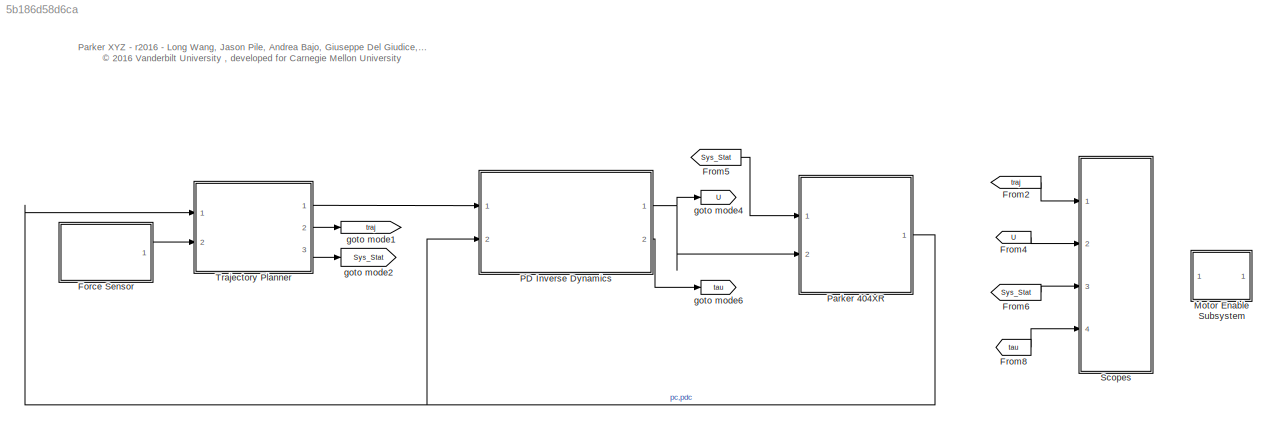
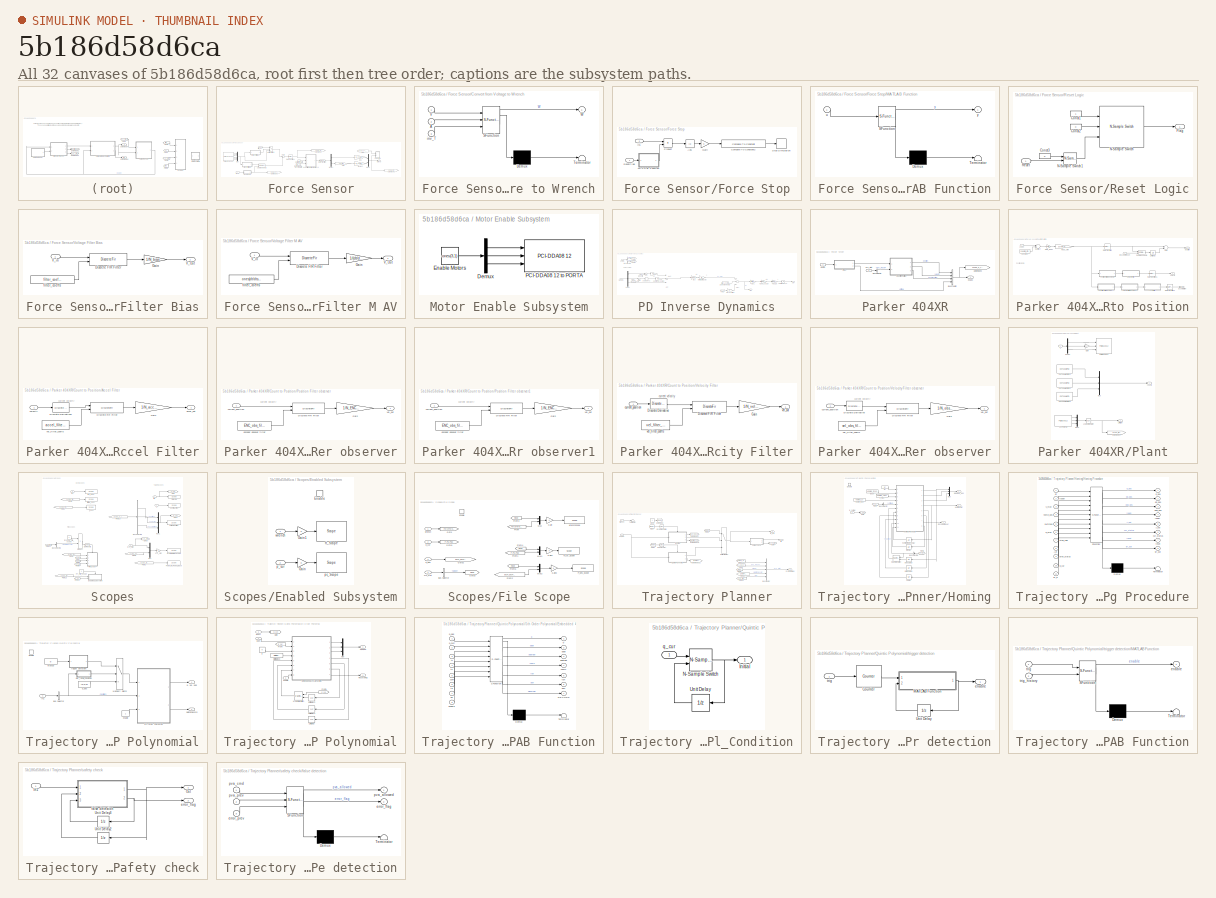
[diagram: thumbnail index - all 32 canvases of the model, root first then tree order]
MODEL slx_5b186d58d6ca
KIND model
CONFIG AbsTol = auto
CONFIG FixedStep = dts
CONFIG InitFcn = PARKER_DEPENDENCY\nParker_Multi_Axis_Init\nParker_ATI_Init\nParker_Home_Init\nParker_ScopeFormat_Init\n
CONFIG MaxStep = auto
CONFIG MinStep = auto
CONFIG RelTol = 1e-3
CONFIG SampleTimeConstraint = Unconstrained
CONFIG Solver = FixedStepDiscrete
CONFIG SolverMode = Auto
CONFIG SolverName = FixedStepDiscrete
CONFIG StartTime = 0.0
CONFIG StopTime = inf
BLOCK [SubSystem] Force Sensor
  Ports = [0, 1]
  RequestExecContextInheritance = off
  Variant = off
BLOCK [Constant] Force Sensor/Calibration Matrix
  Value = A
BLOCK [SubSystem] Force Sensor/Convert from Voltage to Wrench
  ErrorFcn = Stateflow.Translate.translate
  PermitHierarchicalResolution = ExplicitOnly
  Ports = [3, 1]
  RequestExecContextInheritance = off
  SFBlockType = MATLAB Function
  TreatAsAtomicUnit = on
  Variant = off
BLOCK [Demux] Force Sensor/Convert from Voltage to Wrench/ Demux 
  Outputs = 1
  Ports = [1, 1]
BLOCK [S-Function] Force Sensor/Convert from Voltage to Wrench/ SFunction 
  EnableBusSupport = on
  FunctionName = sf_sfun
  PortCounts = [3 2]
  Ports = [3, 2]
  SFunctionDeploymentMode = off
  Tag = Stateflow S-Function slrt_parker 10
BLOCK [Terminator] Force Sensor/Convert from Voltage to Wrench/ Terminator 
BLOCK [Inport] Force Sensor/Convert from Voltage to Wrench/A
  IconDisplay = Port number
  Port = 2
BLOCK [Inport] Force Sensor/Convert from Voltage to Wrench/V
  IconDisplay = Port number
BLOCK [Outport] Force Sensor/Convert from Voltage to Wrench/W
  IconDisplay = Port number
BLOCK [Inport] Force Sensor/Convert from Voltage to Wrench/inv_T
  IconDisplay = Port number
  Port = 3
BLOCK [Demux] Force Sensor/Demux
  DisplayOption = bar
  Outputs = 2
  Ports = [1, 2]
BLOCK [SubSystem] Force Sensor/Force Stop
  Ports = [2]
  RequestExecContextInheritance = off
  Variant = off
BLOCK [Abs] Force Sensor/Force Stop/Abs
  SaturateOnIntegerOverflow = off
BLOCK [Reference] Force Sensor/Force Stop/Compare To Constant2  REF=simulink/Logic and Bit
Operations/Compare
To Constant
  Ports = [1, 1]
  SourceBlock = simulink/Logic and Bit\nOperations/Compare\nTo Constant
  SourceType = Compare To Constant
BLOCK [Gain] Force Sensor/Force Stop/Gain
  OutDataTypeStr = Inherit: Inherit via internal rule
  ParamDataTypeStr = Inherit: Inherit via internal rule
  SaturateOnIntegerOverflow = off
BLOCK [Inport] Force Sensor/Force Stop/In1
  IconDisplay = Port number
  Port = 2
BLOCK [SubSystem] Force Sensor/Force Stop/MATLAB Function
  ErrorFcn = Stateflow.Translate.translate
  PermitHierarchicalResolution = ExplicitOnly
  Ports = [1, 1]
  RequestExecContextInheritance = off
  SFBlockType = MATLAB Function
  TreatAsAtomicUnit = on
  Variant = off
BLOCK [Demux] Force Sensor/Force Stop/MATLAB Function/ Demux 
  Outputs = 1
  Ports = [1, 1]
BLOCK [S-Function] Force Sensor/Force Stop/MATLAB Function/ SFunction 
  EnableBusSupport = on
  FunctionName = sf_sfun
  PortCounts = [1 2]
  Ports = [1, 2]
  SFunctionDeploymentMode = off
  Tag = Stateflow S-Function slrt_parker 29
BLOCK [Terminator] Force Sensor/Force Stop/MATLAB Function/ Terminator 
BLOCK [Inport] Force Sensor/Force Stop/MATLAB Function/u
  IconDisplay = Port number
BLOCK [Outport] Force Sensor/Force Stop/MATLAB Function/y
  IconDisplay = Port number
BLOCK [Product] Force Sensor/Force Stop/Product
  InputSameDT = off
  OutDataTypeStr = Inherit: Inherit via internal rule
  Ports = [2, 1]
  RndMeth = Floor
  SaturateOnIntegerOverflow = off
BLOCK [Inport] Force Sensor/Force Stop/ResetFlag
  IconDisplay = Port number
BLOCK [Stop] Force Sensor/Force Stop/Stop Simulation
BLOCK [From] Force Sensor/From
  GotoTag = Scope_FT_Rst_Flag
  TagVisibility = global
BLOCK [Gain] Force Sensor/Gain
  Gain = ATI_torque_Nmm
  OutDataTypeStr = Inherit: Inherit via internal rule
  ParamDataTypeStr = Inherit: Inherit via internal rule
  SaturateOnIntegerOverflow = off
BLOCK [Constant] Force Sensor/Inverse Tool Transform Matrix
  Value = inv_T
  VectorParams1D = off
BLOCK [MultiPortSwitch] Force Sensor/Multiport Switch
  InputSameDT = off
  Inputs = 2
  Ports = [3, 1]
  SaturateOnIntegerOverflow = off
BLOCK [Mux] Force Sensor/Mux
  DisplayOption = bar
  Inputs = 6
  Ports = [6, 1]
BLOCK [Mux] Force Sensor/Mux2
  DisplayOption = bar
  Inputs = 2
  Ports = [2, 1]
BLOCK [Reference] Force Sensor/PCI-DAS1602 16   REF=xpcobsoletelib/Measurement
Computing obs/A//D/PCI-DAS1602 16 
  Ports = [0, 6]
  SourceBlock = xpcobsoletelib/Measurement\nComputing obs/A//D/PCI-DAS1602 16
  SourceType = adcbpcidas160216
BLOCK [RateTransition] Force Sensor/Rate Transition
  OutPortSampleTime = dt
BLOCK [RateTransition] Force Sensor/Rate Transition1
  OutPortSampleTime = dt
BLOCK [SubSystem] Force Sensor/Reset Logic
  Ports = [1, 1]
  RequestExecContextInheritance = off
  Variant = off
BLOCK [Constant] Force Sensor/Reset Logic/Const1
BLOCK [Constant] Force Sensor/Reset Logic/Const2
  Value = 0
BLOCK [Constant] Force Sensor/Reset Logic/Const3
  Value = 0
BLOCK [Outport] Force Sensor/Reset Logic/Flag
  IconDisplay = Port number
BLOCK [Reference] Force Sensor/Reset Logic/N-Sample Switch  REF=dspswit3/N-Sample
Switch
  Ports = [3, 1]
  SourceBlock = dspswit3/N-Sample\nSwitch
  SourceType = N-Sample Switch
BLOCK [Reference] Force Sensor/Reset Logic/N-Sample Switch1  REF=dspswit3/N-Sample
Switch
  Ports = [2, 1]
  SourceBlock = dspswit3/N-Sample\nSwitch
  SourceType = N-Sample Switch
BLOCK [Inport] Force Sensor/Reset Logic/Reset
  IconDisplay = Port number
BLOCK [Reference] Force Sensor/Sample and Hold  REF=powerlib_meascontrol/Additional Components/Sample and
Hold
  Ports = [2, 1]
  SourceBlock = powerlib_meascontrol/Additional Components/Sample and\nHold
  SourceType = Sample and Hold
BLOCK [Sum] Force Sensor/Sum1
  IconShape = round
  InputSameDT = off
  Inputs = |+-
  OutDataTypeStr = Inherit: Inherit via internal rule
  Ports = [2, 1]
  SampleTime = dts
  SaturateOnIntegerOverflow = off
BLOCK [SubSystem] Force Sensor/Voltage Filter Bias
  Ports = [1, 1]
  RequestExecContextInheritance = off
  Variant = off
BLOCK [DiscreteFir] Force Sensor/Voltage Filter Bias/Discrete FIR Filter
  AccumDataTypeStr = Inherit: Same as product output
  CoefSource = Input port
  InputPortMap = u0,u1
  OutputPortMap = o0
  Ports = [2, 1]
  SampleTime = dts
BLOCK [Gain] Force Sensor/Voltage Filter Bias/Gain
  Gain = 1/N_bias
  OutDataTypeStr = Inherit: Inherit via internal rule
  ParamDataTypeStr = Inherit: Inherit via internal rule
  SampleTime = dts
  SaturateOnIntegerOverflow = off
BLOCK [Outport] Force Sensor/Voltage Filter Bias/V_Out
  IconDisplay = Port number
  SampleTime = dts
BLOCK [Inport] Force Sensor/Voltage Filter Bias/V_in
  IconDisplay = Port number
  SampleTime = dts
BLOCK [Constant] Force Sensor/Voltage Filter Bias/filter_coeffs
  SampleTime = dts
  Value = filter_coeffs_bias
BLOCK [SubSystem] Force Sensor/Voltage Filter M AV
  Ports = [1, 1]
  RequestExecContextInheritance = off
  Variant = off
BLOCK [DiscreteFir] Force Sensor/Voltage Filter M AV/Discrete FIR Filter
  AccumDataTypeStr = Inherit: Same as product output
  CoefSource = Input port
  InputPortMap = u0,u1
  OutputPortMap = o0
  Ports = [2, 1]
  SampleTime = dts
BLOCK [Gain] Force Sensor/Voltage Filter M AV/Gain
  Gain = 1/(dt/dts)
  OutDataTypeStr = Inherit: Inherit via internal rule
  ParamDataTypeStr = Inherit: Inherit via internal rule
  SampleTime = dts
  SaturateOnIntegerOverflow = off
BLOCK [Outport] Force Sensor/Voltage Filter M AV/V_Out
  IconDisplay = Port number
  SampleTime = dts
BLOCK [Inport] Force Sensor/Voltage Filter M AV/V_in
  IconDisplay = Port number
  SampleTime = dts
BLOCK [Constant] Force Sensor/Voltage Filter M AV/filter_coeffs
  SampleTime = dts
  Value = ones(dt/dts,1)
BLOCK [Constant] Force Sensor/filter_sel
  Value = 0
BLOCK [Gain] Force Sensor/force
  Gain = R_FT2robot
  Multiplication = Matrix(K*u)
  OutDataTypeStr = Inherit: Inherit via internal rule
  ParamDataTypeStr = Inherit: Inherit via internal rule
  SaturateOnIntegerOverflow = off
BLOCK [Goto] Force Sensor/goto mode1
  GotoTag = Scope_force_in_RobotBase
  TagVisibility = global
BLOCK [Goto] Force Sensor/goto mode2
  GotoTag = Scope_force_in_FT_frame
  TagVisibility = global
BLOCK [Goto] Force Sensor/goto mode3
  GotoTag = Scope_FT_Rst_Flag
  TagVisibility = global
BLOCK [Gain] Force Sensor/moment
  Gain = R_FT2robot
  Multiplication = Matrix(K*u)
  OutDataTypeStr = Inherit: Inherit via internal rule
  ParamDataTypeStr = Inherit: Inherit via internal rule
  SaturateOnIntegerOverflow = off
BLOCK [Constant] Force Sensor/reset
BLOCK [Outport] Force Sensor/wrench
  IconDisplay = Port number
BLOCK [From] From2
  GotoTag = traj
BLOCK [From] From4
  GotoTag = U
BLOCK [From] From5
  GotoTag = Sys_Stat
BLOCK [From] From6
  GotoTag = Sys_Stat
BLOCK [From] From8
  GotoTag = tau
BLOCK [SubSystem] Motor Enable Subsystem
  Ports = []
  RequestExecContextInheritance = off
  Variant = off
BLOCK [Demux] Motor Enable Subsystem/Demux
  DisplayOption = bar
  Outputs = 3
  Ports = [1, 3]
BLOCK [Constant] Motor Enable Subsystem/Enable Motors
  Value = ones(3,1)
BLOCK [Reference] Motor Enable Subsystem/PCI-DDA08 12 to PORTA  REF=xpcmeasurementcomputinglib/Digital
Output/PCI-DDA08 12 
  Ports = [3]
  SourceBlock = xpcmeasurementcomputinglib/Digital\nOutput/PCI-DDA08 12
  SourceType = docbpcidda0812
BLOCK [SubSystem] PD Inverse Dynamics
  Ports = [2, 2]
  RequestExecContextInheritance = off
  TreatAsAtomicUnit = on
  Variant = off
BLOCK [Sum] PD Inverse Dynamics/Add
  InputSameDT = off
  Inputs = +++
  OutDataTypeStr = Inherit: Inherit via internal rule
  Ports = [3, 1]
  SaturateOnIntegerOverflow = off
BLOCK [Sum] PD Inverse Dynamics/Add1
  InputSameDT = off
  Inputs = ++-
  OutDataTypeStr = Inherit: Inherit via internal rule
  Ports = [3, 1]
  SampleTime = dt
  SaturateOnIntegerOverflow = off
BLOCK [Gain] PD Inverse Dynamics/Amp Gain
  Gain = [5 5 5]
  OutDataTypeStr = Inherit: Inherit via internal rule
  ParamDataTypeStr = Inherit: Inherit via internal rule
  SaturateOnIntegerOverflow = off
BLOCK [BusSelector] PD Inverse Dynamics/Bus Selector1
  OutputSignals = position,velocity
  Ports = [1, 2]
BLOCK [DeadZone] PD Inverse Dynamics/Dead Zone1
  LowerValue = -2.5
  UpperValue = 2.5
BLOCK [Demux] PD Inverse Dynamics/Demux
  DisplayOption = bar
  Outputs = [3 3 3]
  Ports = [1, 3]
BLOCK [From] PD Inverse Dynamics/From
  GotoTag = p_cur
BLOCK [From] PD Inverse Dynamics/From1
  GotoTag = pd_cur
BLOCK [From] PD Inverse Dynamics/From2
  GotoTag = pd_cur
BLOCK [Goto] PD Inverse Dynamics/Goto
  GotoTag = p_cur
BLOCK [Goto] PD Inverse Dynamics/Goto1
  GotoTag = pd_cur
BLOCK [Gain] PD Inverse Dynamics/Inertia Matrix [Kg m^2]
  Gain = B
  Multiplication = Matrix(K*u)
  OutDataTypeStr = Inherit: Inherit via internal rule
  ParamDataTypeStr = Inherit: Inherit via internal rule
  SaturateOnIntegerOverflow = off
BLOCK [Gain] PD Inverse Dynamics/Kd [volts*second//rad]
  Gain = Kd
  Multiplication = Matrix(K*u)
  OutDataTypeStr = Inherit: Inherit via internal rule
  ParamDataTypeStr = Inherit: Inherit via internal rule
  SaturateOnIntegerOverflow = off
BLOCK [Gain] PD Inverse Dynamics/Kp
  Gain = Kp
  Multiplication = Matrix(K*u)
  OutDataTypeStr = Inherit: Inherit via internal rule
  ParamDataTypeStr = Inherit: Inherit via internal rule
  SaturateOnIntegerOverflow = off
BLOCK [Saturate] PD Inverse Dynamics/Saturation [-10, 10]
  InputPortMap = u0
  LowerLimit = -10
  Ports = [1, 1]
  UpperLimit = 10
BLOCK [Sum] PD Inverse Dynamics/Sum
  IconShape = round
  InputSameDT = off
  Inputs = |+-
  OutDataTypeStr = Inherit: Inherit via internal rule
  Ports = [2, 1]
  SaturateOnIntegerOverflow = off
BLOCK [Sum] PD Inverse Dynamics/Sum1
  IconShape = round
  InputSameDT = off
  Inputs = |+-
  OutDataTypeStr = Inherit: Inherit via internal rule
  Ports = [2, 1]
  SaturateOnIntegerOverflow = off
BLOCK [Gain] PD Inverse Dynamics/Torque Constant
  Gain = torque_constant
  OutDataTypeStr = Inherit: Inherit via internal rule
  ParamDataTypeStr = Inherit: Inherit via internal rule
  SaturateOnIntegerOverflow = off
BLOCK [Gain] PD Inverse Dynamics/Viscous Friction
  Gain = F
  Multiplication = Matrix(K*u)
  OutDataTypeStr = Inherit: Inherit via internal rule
  ParamDataTypeStr = Inherit: Inherit via internal rule
  SampleTime = dt
  SaturateOnIntegerOverflow = off
BLOCK [Constant] PD Inverse Dynamics/grav compensator
  Value = grav_vector
BLOCK [Gain] PD Inverse Dynamics/m//s^2
  Gain = 0.001
  OutDataTypeStr = Inherit: Inherit via internal rule
  ParamDataTypeStr = Inherit: Inherit via internal rule
  SaturateOnIntegerOverflow = off
BLOCK [Inport] PD Inverse Dynamics/p, pd, pdd
  IconDisplay = Port number
BLOCK [Inport] PD Inverse Dynamics/pc, pdc
  IconDisplay = Port number
  Port = 2
BLOCK [Gain] PD Inverse Dynamics/pitch1
  Gain = pitch
  OutDataTypeStr = Inherit: Inherit via internal rule
  ParamDataTypeStr = Inherit: Inherit via internal rule
  SaturateOnIntegerOverflow = off
BLOCK [Outport] PD Inverse Dynamics/tau
  IconDisplay = Port number
  Port = 2
BLOCK [Outport] PD Inverse Dynamics/u [V]
  IconDisplay = Port number
BLOCK [SubSystem] Parker 404XR
  Ports = [2, 1]
  RequestExecContextInheritance = off
  Variant = off
BLOCK [BusCreator] Parker 404XR/Bus Creator
  DisplayOption = bar
  InheritFromInputs = on
  Inputs = 4
  Ports = [4, 1]
BLOCK [BusSelector] Parker 404XR/Bus Selector
  OutputSignals = Enc_Reset
  Ports = [1, 1]
BLOCK [SubSystem] Parker 404XR/Count to Position
  Ports = [2, 3]
  RequestExecContextInheritance = off
  Variant = off
BLOCK [SubSystem] Parker 404XR/Count to Position/Accel Filter
  Ports = [1, 1]
  RequestExecContextInheritance = off
  Variant = off
BLOCK [Reference] Parker 404XR/Count to Position/Accel Filter/Discrete Derivative1  REF=simulink/Discrete/Discrete Derivative
  Ports = [1, 1]
  SourceBlock = simulink/Discrete/Discrete Derivative
  SourceType = Discrete Derivative
BLOCK [DiscreteFir] Parker 404XR/Count to Position/Accel Filter/Discrete FIR Filter
  AccumDataTypeStr = Inherit: Same as product output
  CoefSource = Input port
  InputPortMap = u0,u1
  OutputPortMap = o0
  Ports = [2, 1]
BLOCK [Gain] Parker 404XR/Count to Position/Accel Filter/Gain
  Gain = 1/N_acceleration
  OutDataTypeStr = Inherit: Inherit via internal rule
  ParamDataTypeStr = Inherit: Inherit via internal rule
  SaturateOnIntegerOverflow = off
BLOCK [Outport] Parker 404XR/Count to Position/Accel Filter/accel_out
  IconDisplay = Port number
BLOCK [Constant] Parker 404XR/Count to Position/Accel Filter/vel_filter_coeffs
  Value = accel_filter_coeffs
BLOCK [Inport] Parker 404XR/Count to Position/Accel Filter/velocity
  IconDisplay = Port number
BLOCK [Sum] Parker 404XR/Count to Position/Add
  InputSameDT = off
  Inputs = +-
  OutDataTypeStr = Inherit: Inherit via internal rule
  Ports = [2, 1]
  SaturateOnIntegerOverflow = off
BLOCK [Constant] Parker 404XR/Count to Position/Constant
  Value = counter_offset
BLOCK [Inport] Parker 404XR/Count to Position/EncoderReset
  IconDisplay = Port number
  Port = 2
BLOCK [Gain] Parker 404XR/Count to Position/Gain_Rads
  Gain = 2*pi/(quadrature_mode*encoder_counts)
  OutDataTypeStr = Inherit: Inherit via internal rule
  ParamDataTypeStr = Inherit: Inherit via internal rule
  SaturateOnIntegerOverflow = off
BLOCK [SubSystem] Parker 404XR/Count to Position/Position Filter observer
  Ports = [1, 1]
  RequestExecContextInheritance = off
  Variant = off
BLOCK [DiscreteFir] Parker 404XR/Count to Position/Position Filter observer/Discrete FIR Filter
  AccumDataTypeStr = Inherit: Same as product output
  CoefSource = Input port
  InputPortMap = u0,u1
  OutputPortMap = o0
  Ports = [2, 1]
BLOCK [Gain] Parker 404XR/Count to Position/Position Filter observer/Gain
  Gain = 1/N_ENC_obs_filter
  OutDataTypeStr = Inherit: Inherit via internal rule
  ParamDataTypeStr = Inherit: Inherit via internal rule
  SaturateOnIntegerOverflow = off
BLOCK [Inport] Parker 404XR/Count to Position/Position Filter observer/current_position
  IconDisplay = Port number
BLOCK [Constant] Parker 404XR/Count to Position/Position Filter observer/encoder obsever filter
  Value = ENC_obs_filter_coeffs
BLOCK [Outport] Parker 404XR/Count to Position/Position Filter observer/vel_out
  IconDisplay = Port number
BLOCK [SubSystem] Parker 404XR/Count to Position/Position Filter observer1
  Ports = [1, 1]
  RequestExecContextInheritance = off
  Variant = off
BLOCK [DiscreteFir] Parker 404XR/Count to Position/Position Filter observer1/Discrete FIR Filter
  AccumDataTypeStr = Inherit: Same as product output
  CoefSource = Input port
  InputPortMap = u0,u1
  OutputPortMap = o0
  Ports = [2, 1]
BLOCK [Gain] Parker 404XR/Count to Position/Position Filter observer1/Gain
  Gain = 1/N_ENC_obs_filter
  OutDataTypeStr = Inherit: Inherit via internal rule
  ParamDataTypeStr = Inherit: Inherit via internal rule
  SaturateOnIntegerOverflow = off
BLOCK [Inport] Parker 404XR/Count to Position/Position Filter observer1/current_position
  IconDisplay = Port number
BLOCK [Constant] Parker 404XR/Count to Position/Position Filter observer1/encoder obsever filter
  Value = ENC_obs_filter_coeffs
BLOCK [Outport] Parker 404XR/Count to Position/Position Filter observer1/vel_out
  IconDisplay = Port number
BLOCK [Gain] Parker 404XR/Count to Position/Rads_mm
  Gain = screw_pitch/(2*pi)
  OutDataTypeStr = Inherit: Inherit via internal rule
  ParamDataTypeStr = Inherit: Inherit via internal rule
  SaturateOnIntegerOverflow = off
BLOCK [RateTransition] Parker 404XR/Count to Position/Rate Transition
  OutPortSampleTime = dt
BLOCK [RateTransition] Parker 404XR/Count to Position/Rate Transition1
  OutPortSampleTime = dt
BLOCK [RateTransition] Parker 404XR/Count to Position/Rate Transition2
  OutPortSampleTime = dt
BLOCK [Reference] Parker 404XR/Count to Position/Sample and Hold  REF=powerlib_meascontrol/Additional Components/Sample and
Hold
  Ports = [2, 1]
  SourceBlock = powerlib_meascontrol/Additional Components/Sample and\nHold
  SourceType = Sample and Hold
BLOCK [Sum] Parker 404XR/Count to Position/Subtract
  InputSameDT = off
  Inputs = +-
  OutDataTypeStr = Inherit: Inherit via internal rule
  Ports = [2, 1]
  SaturateOnIntegerOverflow = off
BLOCK [UnitDelay] Parker 404XR/Count to Position/Unit Delay
  InputProcessing = Elements as channels (sample based)
  SampleTime = -1
BLOCK [SubSystem] Parker 404XR/Count to Position/Velocity Filter
  Ports = [1, 1]
  RequestExecContextInheritance = off
  Variant = off
BLOCK [SubSystem] Parker 404XR/Count to Position/Velocity Filter observer
  Ports = [1, 1]
  RequestExecContextInheritance = off
  Variant = off
BLOCK [Reference] Parker 404XR/Count to Position/Velocity Filter observer/Discrete Derivative  REF=simulink/Discrete/Discrete Derivative
  Ports = [1, 1]
  SourceBlock = simulink/Discrete/Discrete Derivative
  SourceType = Discrete Derivative
BLOCK [DiscreteFir] Parker 404XR/Count to Position/Velocity Filter observer/Discrete FIR Filter
  AccumDataTypeStr = Inherit: Same as product output
  CoefSource = Input port
  InputPortMap = u0,u1
  OutputPortMap = o0
  Ports = [2, 1]
BLOCK [Gain] Parker 404XR/Count to Position/Velocity Filter observer/Gain
  Gain = 1/N_obs_velocity
  OutDataTypeStr = Inherit: Inherit via internal rule
  ParamDataTypeStr = Inherit: Inherit via internal rule
  SaturateOnIntegerOverflow = off
BLOCK [Inport] Parker 404XR/Count to Position/Velocity Filter observer/current_position
  IconDisplay = Port number
BLOCK [Constant] Parker 404XR/Count to Position/Velocity Filter observer/vel_filter_coeffs
  Value = vel_obs_filter_coeffs
BLOCK [Outport] Parker 404XR/Count to Position/Velocity Filter observer/vel_out
  IconDisplay = Port number
BLOCK [Reference] Parker 404XR/Count to Position/Velocity Filter/Discrete Derivative  REF=simulink/Discrete/Discrete Derivative
  Ports = [1, 1]
  SourceBlock = simulink/Discrete/Discrete Derivative
  SourceType = Discrete Derivative
BLOCK [DiscreteFir] Parker 404XR/Count to Position/Velocity Filter/Discrete FIR Filter
  AccumDataTypeStr = Inherit: Same as product output
  CoefSource = Input port
  InputPortMap = u0,u1
  OutputPortMap = o0
  Ports = [2, 1]
BLOCK [Gain] Parker 404XR/Count to Position/Velocity Filter/Gain
  Gain = 1/N_velocity
  OutDataTypeStr = Inherit: Inherit via internal rule
  ParamDataTypeStr = Inherit: Inherit via internal rule
  SaturateOnIntegerOverflow = off
BLOCK [Inport] Parker 404XR/Count to Position/Velocity Filter/current_position
  IconDisplay = Port number
BLOCK [Constant] Parker 404XR/Count to Position/Velocity Filter/vel_filter_coeffs
  Value = vel_filter_coeffs
BLOCK [Outport] Parker 404XR/Count to Position/Velocity Filter/vel_out
  IconDisplay = Port number
BLOCK [Outport] Parker 404XR/Count to Position/acceleration
  IconDisplay = Port number
  Port = 3
BLOCK [Inport] Parker 404XR/Count to Position/count
  IconDisplay = Port number
BLOCK [Outport] Parker 404XR/Count to Position/position
  IconDisplay = Port number
BLOCK [Outport] Parker 404XR/Count to Position/velocity
  IconDisplay = Port number
  Port = 2
BLOCK [SubSystem] Parker 404XR/Plant
  Ports = [1, 2]
  RequestExecContextInheritance = off
  Variant = off
BLOCK [Reference] Parker 404XR/Plant/1STPORTB   REF=xpcmeasurementcomputinglib/Digital
Input/PCI-DDA08 12 
  Ports = [0, 3]
  SourceBlock = xpcmeasurementcomputinglib/Digital\nInput/PCI-DDA08 12
  SourceType = dicbpcidda0812
BLOCK [Reference] Parker 404XR/Plant/CNT32-8M(PCI) Ch1  REF=xpcconteclib/Incremental
Encoder/CNT32-8M(PCI) 
  Ports = [0, 1]
  SourceBlock = xpcconteclib/Incremental\nEncoder/CNT32-8M(PCI)
  SourceType = encconteccnt328mpci
BLOCK [Reference] Parker 404XR/Plant/CNT32-8M(PCI) Ch2  REF=xpcconteclib/Incremental
Encoder/CNT32-8M(PCI) 
  Ports = [0, 1]
  SourceBlock = xpcconteclib/Incremental\nEncoder/CNT32-8M(PCI)
  SourceType = encconteccnt328mpci
BLOCK [Reference] Parker 404XR/Plant/CNT32-8M(PCI) Ch3  REF=xpcconteclib/Incremental
Encoder/CNT32-8M(PCI) 
  Ports = [0, 1]
  SourceBlock = xpcconteclib/Incremental\nEncoder/CNT32-8M(PCI)
  SourceType = encconteccnt328mpci
BLOCK [Demux] Parker 404XR/Plant/Demux
  DisplayOption = bar
  Outputs = 3
  Ports = [1, 3]
BLOCK [Gain] Parker 404XR/Plant/Gain
  Gain = -1
  OutDataTypeStr = Inherit: Inherit via internal rule
  ParamDataTypeStr = Inherit: Inherit via internal rule
  SaturateOnIntegerOverflow = off
BLOCK [Outport] Parker 404XR/Plant/LimitSW
  IconDisplay = Port number
  Port = 2
BLOCK [Logic] Parker 404XR/Plant/Logical Operator
  AllPortsSameDT = off
  Inputs = 1
  Operator = NOT
  OutDataTypeStr = boolean
  Ports = [1, 1]
BLOCK [Mux] Parker 404XR/Plant/Mux
  DisplayOption = bar
  Inputs = 3
  Ports = [3, 1]
BLOCK [Mux] Parker 404XR/Plant/Mux1
  DisplayOption = bar
  Inputs = 3
  Ports = [3, 1]
BLOCK [Reference] Parker 404XR/Plant/PCI-DDA08 12   REF=xpcmeasurementcomputinglib/D//A/PCI-DDA08 12 
  Ports = [3]
  SourceBlock = xpcmeasurementcomputinglib/D//A/PCI-DDA08 12
  SourceType = dacbpcidda0812
BLOCK [Outport] Parker 404XR/Plant/counts
  IconDisplay = Port number
BLOCK [Goto] Parker 404XR/Plant/goto mode3
  GotoTag = Scope_limit_SW
  TagVisibility = global
BLOCK [Inport] Parker 404XR/Plant/u
  IconDisplay = Port number
BLOCK [Inport] Parker 404XR/Sys_Stat
  IconDisplay = Port number
BLOCK [Goto] Parker 404XR/goto mode3
  GotoTag = Scope_p_cur
  TagVisibility = global
BLOCK [Outport] Parker 404XR/pc, pdc
  IconDisplay = Port number
BLOCK [Inport] Parker 404XR/u [Amp]
  IconDisplay = Port number
  Port = 2
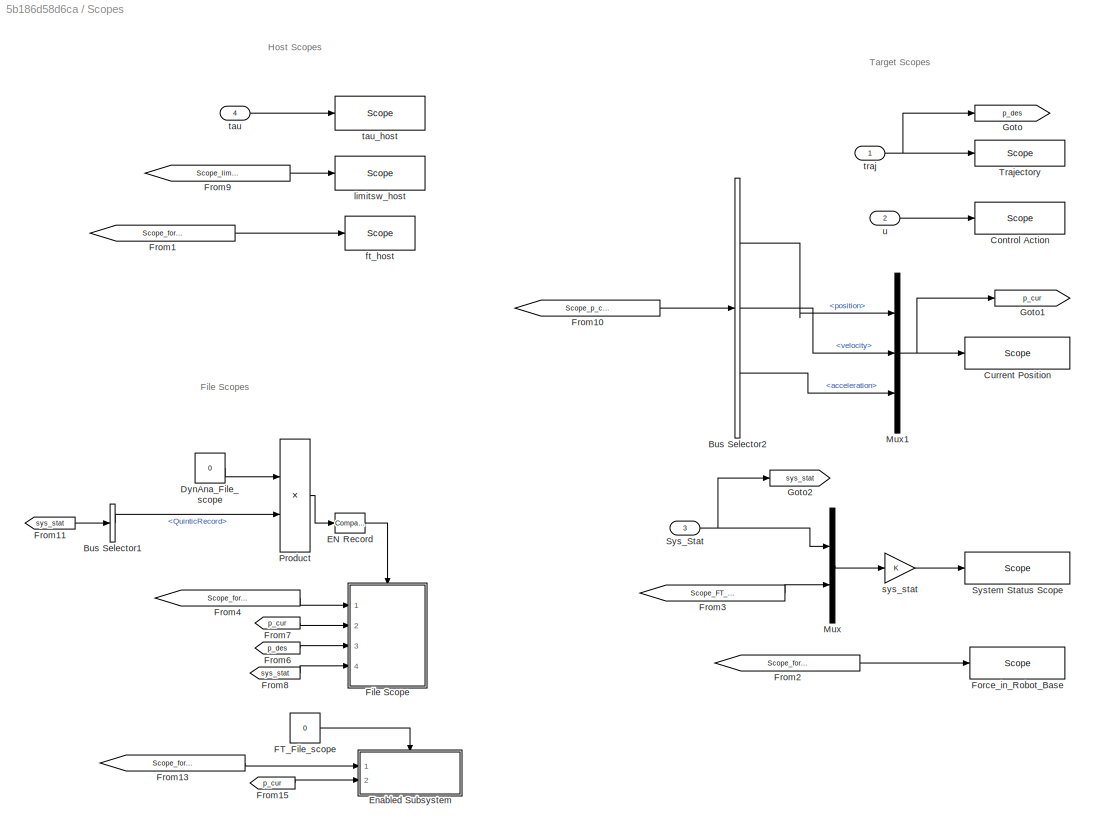
BLOCK [SubSystem] Scopes
  Ports = [4]
  RequestExecContextInheritance = off
  Variant = off
BLOCK [BusSelector] Scopes/Bus Selector1
  OutputSignals = QuinticRecord
  Ports = [1, 1]
BLOCK [BusSelector] Scopes/Bus Selector2
  OutputSignals = position,velocity,acceleration
  Ports = [1, 3]
BLOCK [Reference] Scopes/Control Action  REF=slrtlib/Displays and
Logging/Scope 
  Ports = [1]
  SourceBlock = slrtlib/Displays and\nLogging/Scope
  SourceType = xpcscopeblock
BLOCK [Reference] Scopes/Current Position  REF=slrtlib/Displays and
Logging/Scope 
  Ports = [1]
  SourceBlock = slrtlib/Displays and\nLogging/Scope
  SourceType = xpcscopeblock
BLOCK [Constant] Scopes/DynAna_File_scope
  Value = 0
BLOCK [Reference] Scopes/EN Record  REF=simulink/Logic and Bit
Operations/Compare
To Constant
  Ports = [1, 1]
  SourceBlock = simulink/Logic and Bit\nOperations/Compare\nTo Constant
  SourceType = Compare To Constant
BLOCK [SubSystem] Scopes/Enabled Subsystem
  Ports = [2, 0, 1]
  RequestExecContextInheritance = off
  TreatAsAtomicUnit = on
  Variant = off
BLOCK [EnablePort] Scopes/Enabled Subsystem/Enable
  Ports = []
BLOCK [Gain] Scopes/Enabled Subsystem/Gain
  OutDataTypeStr = Inherit: Inherit via internal rule
  ParamDataTypeStr = Inherit: Inherit via internal rule
  SaturateOnIntegerOverflow = off
BLOCK [Gain] Scopes/Enabled Subsystem/Gain1
  OutDataTypeStr = Inherit: Inherit via internal rule
  ParamDataTypeStr = Inherit: Inherit via internal rule
  SaturateOnIntegerOverflow = off
BLOCK [Reference] Scopes/Enabled Subsystem/ft_Scope   REF=slrtlib/Displays and
Logging/Scope 
  Ports = [1]
  SourceBlock = slrtlib/Displays and\nLogging/Scope
  SourceType = xpcscopeblock
BLOCK [Inport] Scopes/Enabled Subsystem/p_cur
  IconDisplay = Port number
  Port = 2
BLOCK [Reference] Scopes/Enabled Subsystem/pc_Scope   REF=slrtlib/Displays and
Logging/Scope 
  Ports = [1]
  SourceBlock = slrtlib/Displays and\nLogging/Scope
  SourceType = xpcscopeblock
BLOCK [Inport] Scopes/Enabled Subsystem/wrench
  IconDisplay = Port number
BLOCK [Constant] Scopes/FT_File_scope
  Value = 0
BLOCK [SubSystem] Scopes/File Scope
  Ports = [4, 0, 1]
  RequestExecContextInheritance = off
  Variant = off
BLOCK [BusSelector] Scopes/File Scope/Bus Selector
  OutputSignals = Mode
  Ports = [1, 1]
BLOCK [EnablePort] Scopes/File Scope/Enable
  Ports = []
BLOCK [From] Scopes/File Scope/From
  GotoTag = ForceTorque
BLOCK [From] Scopes/File Scope/From1
  GotoTag = P_PD_PDD
BLOCK [From] Scopes/File Scope/From2
  GotoTag = desP_desPD_desPDD
BLOCK [From] Scopes/File Scope/From3
  GotoTag = mode
BLOCK [From] Scopes/File Scope/From4
  GotoTag = mode
BLOCK [From] Scopes/File Scope/From5
  GotoTag = mode
BLOCK [Gain] Scopes/File Scope/Gain
  OutDataTypeStr = Inherit: Inherit via internal rule
  ParamDataTypeStr = Inherit: Inherit via internal rule
  SaturateOnIntegerOverflow = off
BLOCK [Gain] Scopes/File Scope/Gain1
  OutDataTypeStr = Inherit: Inherit via internal rule
  ParamDataTypeStr = Inherit: Inherit via internal rule
  SaturateOnIntegerOverflow = off
BLOCK [Gain] Scopes/File Scope/Gain2
  OutDataTypeStr = Inherit: Inherit via internal rule
  ParamDataTypeStr = Inherit: Inherit via internal rule
  SaturateOnIntegerOverflow = off
BLOCK [Goto] Scopes/File Scope/Goto
  GotoTag = ForceTorque
BLOCK [Goto] Scopes/File Scope/Goto1
  GotoTag = P_PD_PDD
BLOCK [Goto] Scopes/File Scope/Goto2
  GotoTag = desP_desPD_desPDD
BLOCK [Goto] Scopes/File Scope/Goto3
  GotoTag = mode
BLOCK [Mux] Scopes/File Scope/Mux
  DisplayOption = bar
  Inputs = 2
  Ports = [2, 1]
BLOCK [Mux] Scopes/File Scope/Mux1
  DisplayOption = bar
  Inputs = 2
  Ports = [2, 1]
BLOCK [Mux] Scopes/File Scope/Mux2
  DisplayOption = bar
  Inputs = 2
  Ports = [2, 1]
BLOCK [Reference] Scopes/File Scope/P_cur_Scope  REF=slrtlib/Displays and
Logging/Scope 
  Ports = [1]
  SourceBlock = slrtlib/Displays and\nLogging/Scope
  SourceType = xpcscopeblock
BLOCK [Reference] Scopes/File Scope/P_des_Scope  REF=slrtlib/Displays and
Logging/Scope 
  Ports = [1]
  SourceBlock = slrtlib/Displays and\nLogging/Scope
  SourceType = xpcscopeblock
BLOCK [Inport] Scopes/File Scope/p_cur
  IconDisplay = Port number
  Port = 2
BLOCK [Inport] Scopes/File Scope/p_des
  IconDisplay = Port number
  Port = 3
BLOCK [Inport] Scopes/File Scope/sys_stat
  IconDisplay = Port number
  Port = 4
BLOCK [Inport] Scopes/File Scope/wrench
  IconDisplay = Port number
BLOCK [Reference] Scopes/File Scope/wrenchScope  REF=slrtlib/Displays and
Logging/Scope 
  Ports = [1]
  SourceBlock = slrtlib/Displays and\nLogging/Scope
  SourceType = xpcscopeblock
BLOCK [Reference] Scopes/Force_in_Robot_Base  REF=slrtlib/Displays and
Logging/Scope 
  Ports = [1]
  SourceBlock = slrtlib/Displays and\nLogging/Scope
  SourceType = xpcscopeblock
BLOCK [From] Scopes/From1
  GotoTag = Scope_force_in_FT_frame
  TagVisibility = global
BLOCK [From] Scopes/From10
  GotoTag = Scope_p_cur
  TagVisibility = global
BLOCK [From] Scopes/From11
  GotoTag = sys_stat
BLOCK [From] Scopes/From13
  GotoTag = Scope_force_in_FT_frame
  TagVisibility = global
BLOCK [From] Scopes/From15
  GotoTag = p_cur
BLOCK [From] Scopes/From2
  GotoTag = Scope_force_in_RobotBase
  TagVisibility = global
BLOCK [From] Scopes/From3
  GotoTag = Scope_FT_Rst_Flag
  TagVisibility = global
BLOCK [From] Scopes/From4
  GotoTag = Scope_force_in_RobotBase
  TagVisibility = global
BLOCK [From] Scopes/From6
  GotoTag = p_des
BLOCK [From] Scopes/From7
  GotoTag = p_cur
BLOCK [From] Scopes/From8
  GotoTag = sys_stat
BLOCK [From] Scopes/From9
  GotoTag = Scope_limit_SW
  TagVisibility = global
BLOCK [Goto] Scopes/Goto
  GotoTag = p_des
BLOCK [Goto] Scopes/Goto1
  GotoTag = p_cur
BLOCK [Goto] Scopes/Goto2
  GotoTag = sys_stat
BLOCK [Mux] Scopes/Mux
  DisplayOption = bar
  Inputs = 2
  Ports = [2, 1]
BLOCK [Mux] Scopes/Mux1
  DisplayOption = bar
  Inputs = 3
  Ports = [3, 1]
BLOCK [Product] Scopes/Product
  InputSameDT = off
  OutDataTypeStr = Inherit: Inherit via internal rule
  Ports = [2, 1]
  SaturateOnIntegerOverflow = off
BLOCK [Inport] Scopes/Sys_Stat
  IconDisplay = Port number
  Port = 3
BLOCK [Reference] Scopes/System Status Scope  REF=slrtlib/Displays and
Logging/Scope 
  Ports = [1]
  SourceBlock = slrtlib/Displays and\nLogging/Scope
  SourceType = xpcscopeblock
BLOCK [Reference] Scopes/Trajectory  REF=slrtlib/Displays and
Logging/Scope 
  Ports = [1]
  SourceBlock = slrtlib/Displays and\nLogging/Scope
  SourceType = xpcscopeblock
BLOCK [Reference] Scopes/ft_host  REF=slrtlib/Displays and
Logging/Scope 
  Ports = [1]
  SourceBlock = slrtlib/Displays and\nLogging/Scope
  SourceType = xpcscopeblock
BLOCK [Reference] Scopes/limitsw_host  REF=slrtlib/Displays and
Logging/Scope 
  Ports = [1]
  SourceBlock = slrtlib/Displays and\nLogging/Scope
  SourceType = xpcscopeblock
BLOCK [Gain] Scopes/sys_stat
  OutDataTypeStr = Inherit: Inherit via internal rule
  ParamDataTypeStr = Inherit: Inherit via internal rule
  SaturateOnIntegerOverflow = off
BLOCK [Inport] Scopes/tau
  IconDisplay = Port number
  Port = 4
BLOCK [Reference] Scopes/tau_host   REF=slrtlib/Displays and
Logging/Scope 
  Ports = [1]
  SourceBlock = slrtlib/Displays and\nLogging/Scope
  SourceType = xpcscopeblock
BLOCK [Inport] Scopes/traj
  IconDisplay = Port number
BLOCK [Inport] Scopes/u
  IconDisplay = Port number
  Port = 2
BLOCK [SubSystem] Trajectory Planner
  Ports = [2, 3]
  RequestExecContextInheritance = off
  TreatAsAtomicUnit = on
  Variant = off
BLOCK [BusCreator] Trajectory Planner/Bus Creator
  DisplayOption = bar
  InheritFromInputs = on
  Inputs = 5
  Ports = [5, 1]
BLOCK [Reference] Trajectory Planner/Enable Homing  REF=simulink/Logic and Bit
Operations/Compare
To Constant
  Ports = [1, 1]
  SourceBlock = simulink/Logic and Bit\nOperations/Compare\nTo Constant
  SourceType = Compare To Constant
BLOCK [Reference] Trajectory Planner/Enable Joint  REF=simulink/Logic and Bit
Operations/Compare
To Constant
  Ports = [1, 1]
  SourceBlock = simulink/Logic and Bit\nOperations/Compare\nTo Constant
  SourceType = Compare To Constant
BLOCK [From] Trajectory Planner/From
  GotoTag = mode
BLOCK [From] Trajectory Planner/From1
  GotoTag = mode
BLOCK [From] Trajectory Planner/From12
  GotoTag = Homing_stat
BLOCK [From] Trajectory Planner/From2
  GotoTag = mode
BLOCK [From] Trajectory Planner/From23
  GotoTag = QuinticRecord
BLOCK [From] Trajectory Planner/From31
  GotoTag = sys_error
BLOCK [From] Trajectory Planner/From5
  GotoTag = mode
BLOCK [From] Trajectory Planner/From6
  GotoTag = Enc_Reset
BLOCK [Goto] Trajectory Planner/Goto
  GotoTag = sys_error
BLOCK [SubSystem] Trajectory Planner/Homing
  Ports = [1, 3, 1]
  RequestExecContextInheritance = off
  Variant = off
BLOCK [UnitDelay] Trajectory Planner/Homing/A Delay
  InitialCondition = zeros(HOMING_num_joint,4)
  SampleTime = dt
BLOCK [BusSelector] Trajectory Planner/Homing/Bus Selector
  OutputSignals = LimitSW
  Ports = [1, 1]
BLOCK [BusSelector] Trajectory Planner/Homing/Bus Selector1
  OutputSignals = position
  Ports = [1, 1]
BLOCK [EnablePort] Trajectory Planner/Homing/Enable
  Ports = []
  StatesWhenEnabling = reset
BLOCK [Outport] Trajectory Planner/Homing/Encoder Reset
  IconDisplay = Port number
BLOCK [From] Trajectory Planner/Homing/From
  GotoTag = q_cur
BLOCK [From] Trajectory Planner/Homing/From1
  GotoTag = q_cur
BLOCK [Goto] Trajectory Planner/Homing/Goto
  GotoTag = q_cur
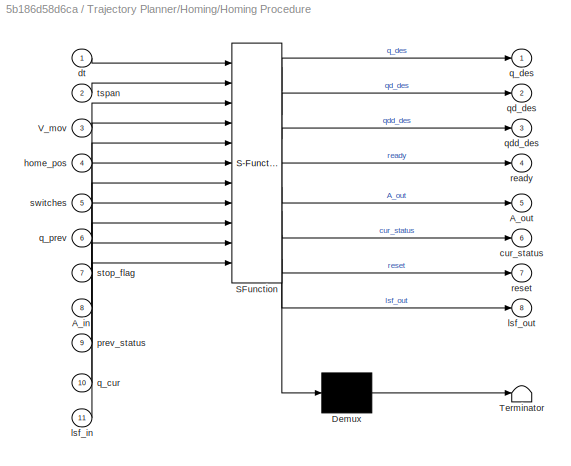
BLOCK [SubSystem] Trajectory Planner/Homing/Homing Procedure
  ErrorFcn = Stateflow.Translate.translate
  PermitHierarchicalResolution = ExplicitOnly
  Ports = [11, 8]
  RequestExecContextInheritance = off
  SFBlockType = MATLAB Function
  TreatAsAtomicUnit = on
  Variant = off
BLOCK [Demux] Trajectory Planner/Homing/Homing Procedure/ Demux 
  Outputs = 1
  Ports = [1, 1]
BLOCK [S-Function] Trajectory Planner/Homing/Homing Procedure/ SFunction 
  EnableBusSupport = on
  FunctionName = sf_sfun
  PortCounts = [11 9]
  Ports = [11, 9]
  SFunctionDeploymentMode = off
  Tag = Stateflow S-Function slrt_parker 4
BLOCK [Terminator] Trajectory Planner/Homing/Homing Procedure/ Terminator 
BLOCK [Inport] Trajectory Planner/Homing/Homing Procedure/A_in
  IconDisplay = Port number
  Port = 8
BLOCK [Outport] Trajectory Planner/Homing/Homing Procedure/A_out
  IconDisplay = Port number
  Port = 5
BLOCK [Inport] Trajectory Planner/Homing/Homing Procedure/V_mov
  IconDisplay = Port number
  Port = 3
BLOCK [Outport] Trajectory Planner/Homing/Homing Procedure/cur_status
  IconDisplay = Port number
  Port = 6
BLOCK [Inport] Trajectory Planner/Homing/Homing Procedure/dt
  IconDisplay = Port number
BLOCK [Inport] Trajectory Planner/Homing/Homing Procedure/home_pos
  IconDisplay = Port number
  Port = 4
BLOCK [Inport] Trajectory Planner/Homing/Homing Procedure/lsf_in
  IconDisplay = Port number
  Port = 11
BLOCK [Outport] Trajectory Planner/Homing/Homing Procedure/lsf_out
  IconDisplay = Port number
  Port = 8
BLOCK [Inport] Trajectory Planner/Homing/Homing Procedure/prev_status
  IconDisplay = Port number
  Port = 9
BLOCK [Inport] Trajectory Planner/Homing/Homing Procedure/q_cur
  IconDisplay = Port number
  Port = 10
BLOCK [Outport] Trajectory Planner/Homing/Homing Procedure/q_des
  IconDisplay = Port number
BLOCK [Inport] Trajectory Planner/Homing/Homing Procedure/q_prev
  IconDisplay = Port number
  Port = 6
BLOCK [Outport] Trajectory Planner/Homing/Homing Procedure/qd_des
  IconDisplay = Port number
  Port = 2
BLOCK [Outport] Trajectory Planner/Homing/Homing Procedure/qdd_des
  IconDisplay = Port number
  Port = 3
BLOCK [Outport] Trajectory Planner/Homing/Homing Procedure/ready
  IconDisplay = Port number
  Port = 4
BLOCK [Outport] Trajectory Planner/Homing/Homing Procedure/reset
  IconDisplay = Port number
  Port = 7
BLOCK [Inport] Trajectory Planner/Homing/Homing Procedure/stop_flag
  IconDisplay = Port number
  Port = 7
BLOCK [Inport] Trajectory Planner/Homing/Homing Procedure/switches
  IconDisplay = Port number
  Port = 5
BLOCK [Inport] Trajectory Planner/Homing/Homing Procedure/tspan
  IconDisplay = Port number
  Port = 2
BLOCK [Outport] Trajectory Planner/Homing/Homing stat
  IconDisplay = Port number
  Port = 3
BLOCK [Mux] Trajectory Planner/Homing/Mux
  DisplayOption = bar
  Inputs = 3
  Ports = [3, 1]
BLOCK [Reference] Trajectory Planner/Homing/N-Sample Switch  REF=dspswit3/N-Sample
Switch
  Ports = [2, 1]
  SourceBlock = dspswit3/N-Sample\nSwitch
  SourceType = N-Sample Switch
BLOCK [Constant] Trajectory Planner/Homing/V_mov
  SampleTime = dt
  Value = HOMING_Vmov
BLOCK [Constant] Trajectory Planner/Homing/dt
  SampleTime = dt
  Value = dt
BLOCK [Constant] Trajectory Planner/Homing/home_pos
  SampleTime = dt
  Value = HOMING_dx
BLOCK [UnitDelay] Trajectory Planner/Homing/homing ready delay
  SampleTime = dt
BLOCK [UnitDelay] Trajectory Planner/Homing/lsf delay
  InitialCondition = ones(HOMING_num_joint,1)
  SampleTime = dt
BLOCK [Outport] Trajectory Planner/Homing/q,qd,qdd_des
  IconDisplay = Port number
  Port = 2
BLOCK [Inport] Trajectory Planner/Homing/q_cur,Sw
  IconDisplay = Port number
BLOCK [UnitDelay] Trajectory Planner/Homing/qdes Delay
  InitialCondition = zeros(HOMING_num_joint,1)
  SampleTime = dt
BLOCK [UnitDelay] Trajectory Planner/Homing/status delay
  SampleTime = dt
BLOCK [Constant] Trajectory Planner/Homing/tspan
  SampleTime = dt
  Value = HOMING_tspan
BLOCK [Constant] Trajectory Planner/Mode
  Value = 2
BLOCK [MultiPortSwitch] Trajectory Planner/Multiport Switch
  InputSameDT = off
  Inputs = 2
  Ports = [3, 1]
  SaturateOnIntegerOverflow = off
BLOCK [SubSystem] Trajectory Planner/Quintic Polynomial
  Ports = [1, 2, 1]
  RequestExecContextInheritance = off
  TreatAsAtomicUnit = on
  Variant = off
BLOCK [SubSystem] Trajectory Planner/Quintic Polynomial/5th Order Polynomial
  Ports = [3, 2]
  RequestExecContextInheritance = off
  Variant = off
BLOCK [DigitalClock] Trajectory Planner/Quintic Polynomial/5th Order Polynomial/Digital Clock
  SampleTime = dt
BLOCK [SubSystem] Trajectory Planner/Quintic Polynomial/5th Order Polynomial/Embedded MATLAB Function
  ErrorFcn = Stateflow.Translate.translate
  PermitHierarchicalResolution = ExplicitOnly
  Ports = [8, 7]
  RequestExecContextInheritance = off
  SFBlockType = MATLAB Function
  TreatAsAtomicUnit = on
  Variant = off
BLOCK [Demux] Trajectory Planner/Quintic Polynomial/5th Order Polynomial/Embedded MATLAB Function/ Demux 
  Outputs = 1
  Ports = [1, 1]
BLOCK [S-Function] Trajectory Planner/Quintic Polynomial/5th Order Polynomial/Embedded MATLAB Function/ SFunction 
  EnableBusSupport = on
  FunctionName = sf_sfun
  PortCounts = [8 8]
  Ports = [8, 8]
  SFunctionDeploymentMode = off
  Tag = Stateflow S-Function slrt_parker 22
BLOCK [Terminator] Trajectory Planner/Quintic Polynomial/5th Order Polynomial/Embedded MATLAB Function/ Terminator 
BLOCK [Outport] Trajectory Planner/Quintic Polynomial/5th Order Polynomial/Embedded MATLAB Function/RECORD
  IconDisplay = Port number
  Port = 7
BLOCK [Inport] Trajectory Planner/Quintic Polynomial/5th Order Polynomial/Embedded MATLAB Function/conf
  IconDisplay = Port number
  Port = 5
BLOCK [Outport] Trajectory Planner/Quintic Polynomial/5th Order Polynomial/Embedded MATLAB Function/confn
  IconDisplay = Port number
  Port = 4
BLOCK [Inport] Trajectory Planner/Quintic Polynomial/5th Order Polynomial/Embedded MATLAB Function/enable
  IconDisplay = Port number
  Port = 8
BLOCK [Outport] Trajectory Planner/Quintic Polynomial/5th Order Polynomial/Embedded MATLAB Function/p
  IconDisplay = Port number
BLOCK [Inport] Trajectory Planner/Quintic Polynomial/5th Order Polynomial/Embedded MATLAB Function/p0
  IconDisplay = Port number
  Port = 7
BLOCK [Outport] Trajectory Planner/Quintic Polynomial/5th Order Polynomial/Embedded MATLAB Function/p0n
  IconDisplay = Port number
  Port = 6
BLOCK [Inport] Trajectory Planner/Quintic Polynomial/5th Order Polynomial/Embedded MATLAB Function/p_curr
  IconDisplay = Port number
  Port = 2
BLOCK [Inport] Trajectory Planner/Quintic Polynomial/5th Order Polynomial/Embedded MATLAB Function/p_des
  IconDisplay = Port number
BLOCK [Outport] Trajectory Planner/Quintic Polynomial/5th Order Polynomial/Embedded MATLAB Function/pdot
  IconDisplay = Port number
  Port = 2
BLOCK [Outport] Trajectory Planner/Quintic Polynomial/5th Order Polynomial/Embedded MATLAB Function/pdotdot
  IconDisplay = Port number
  Port = 3
BLOCK [Inport] Trajectory Planner/Quintic Polynomial/5th Order Polynomial/Embedded MATLAB Function/t0
  IconDisplay = Port number
  Port = 6
BLOCK [Outport] Trajectory Planner/Quintic Polynomial/5th Order Polynomial/Embedded MATLAB Function/t0n
  IconDisplay = Port number
  Port = 5
BLOCK [Inport] Trajectory Planner/Quintic Polynomial/5th Order Polynomial/Embedded MATLAB Function/tc
  IconDisplay = Port number
  Port = 4
BLOCK [Inport] Trajectory Planner/Quintic Polynomial/5th Order Polynomial/Embedded MATLAB Function/tf
  IconDisplay = Port number
  Port = 3
BLOCK [From] Trajectory Planner/Quintic Polynomial/5th Order Polynomial/From
  GotoTag = q_cur
BLOCK [From] Trajectory Planner/Quintic Polynomial/5th Order Polynomial/From1
  GotoTag = q_cur
BLOCK [Goto] Trajectory Planner/Quintic Polynomial/5th Order Polynomial/Goto
  GotoTag = q_cur
BLOCK [Mux] Trajectory Planner/Quintic Polynomial/5th Order Polynomial/Mux
  DisplayOption = bar
  Inputs = 3
  Ports = [3, 1]
BLOCK [Reference] Trajectory Planner/Quintic Polynomial/5th Order Polynomial/N-Sample Switch  REF=dspswit3/N-Sample
Switch
  Ports = [2, 1]
  SourceBlock = dspswit3/N-Sample\nSwitch
  SourceType = N-Sample Switch
BLOCK [Outport] Trajectory Planner/Quintic Polynomial/5th Order Polynomial/RecordFlag
  IconDisplay = Port number
  Port = 2
BLOCK [UnitDelay] Trajectory Planner/Quintic Polynomial/5th Order Polynomial/Unit Delay
  SampleTime = dt
BLOCK [UnitDelay] Trajectory Planner/Quintic Polynomial/5th Order Polynomial/Unit Delay1
  SampleTime = dt
BLOCK [UnitDelay] Trajectory Planner/Quintic Polynomial/5th Order Polynomial/Unit Delay2
  SampleTime = dt
BLOCK [Inport] Trajectory Planner/Quintic Polynomial/5th Order Polynomial/enable
  IconDisplay = Port number
  Port = 3
BLOCK [Inport] Trajectory Planner/Quintic Polynomial/5th Order Polynomial/q curr
  IconDisplay = Port number
  Port = 2
BLOCK [Inport] Trajectory Planner/Quintic Polynomial/5th Order Polynomial/q des
  IconDisplay = Port number
BLOCK [Outport] Trajectory Planner/Quintic Polynomial/5th Order Polynomial/q,qd,qdd
  IconDisplay = Port number
BLOCK [Constant] Trajectory Planner/Quintic Polynomial/5th Order Polynomial/tf
  SampleTime = dt
  Value = 5
BLOCK [BusSelector] Trajectory Planner/Quintic Polynomial/Bus Selector
  OutputSignals = position
  Ports = [1, 1]
BLOCK [EnablePort] Trajectory Planner/Quintic Polynomial/Enable
  Ports = []
  StatesWhenEnabling = reset
BLOCK [SubSystem] Trajectory Planner/Quintic Polynomial/Get_Initial_Condition
  Ports = [1, 1]
  RequestExecContextInheritance = off
  Variant = off
BLOCK [Outport] Trajectory Planner/Quintic Polynomial/Get_Initial_Condition/Initial
  IconDisplay = Port number
BLOCK [Reference] Trajectory Planner/Quintic Polynomial/Get_Initial_Condition/N-Sample Switch  REF=dspswit3/N-Sample
Switch
  Ports = [2, 1]
  SourceBlock = dspswit3/N-Sample\nSwitch
  SourceType = N-Sample Switch
BLOCK [UnitDelay] Trajectory Planner/Quintic Polynomial/Get_Initial_Condition/Unit Delay
  InitialCondition = zeros(3,1)
  SampleTime = -1
BLOCK [Inport] Trajectory Planner/Quintic Polynomial/Get_Initial_Condition/q_cur
  IconDisplay = Port number
BLOCK [Inport] Trajectory Planner/Quintic Polynomial/In1
  IconDisplay = Port number
BLOCK [Constant] Trajectory Planner/Quintic Polynomial/Manual
  Value = 0
BLOCK [MultiPortSwitch] Trajectory Planner/Quintic Polynomial/Multiport Switch
  DataPortOrder = Zero-based contiguous
  InputSameDT = off
  Inputs = 2
  Ports = [3, 1]
  SaturateOnIntegerOverflow = off
BLOCK [Outport] Trajectory Planner/Quintic Polynomial/QuinticRecord
  IconDisplay = Port number
  InitialOutput = 0
  Port = 2
BLOCK [Constant] Trajectory Planner/Quintic Polynomial/enable
BLOCK [Outport] Trajectory Planner/Quintic Polynomial/p, pd, pdd
  IconDisplay = Port number
  InitialOutput = zeros(9,1)
BLOCK [Constant] Trajectory Planner/Quintic Polynomial/q_des
  Value = [0;0;0]
BLOCK [SubSystem] Trajectory Planner/Quintic Polynomial/trigger detection
  Ports = [1, 1]
  RequestExecContextInheritance = off
  Variant = off
BLOCK [Reference] Trajectory Planner/Quintic Polynomial/trigger detection/Counter  REF=dspswit3/Counter
  Ports = [1, 1]
  SourceBlock = dspswit3/Counter
  SourceType = Counter
BLOCK [SubSystem] Trajectory Planner/Quintic Polynomial/trigger detection/MATLAB Function
  ErrorFcn = Stateflow.Translate.translate
  PermitHierarchicalResolution = ExplicitOnly
  Ports = [2, 1]
  RequestExecContextInheritance = off
  SFBlockType = MATLAB Function
  TreatAsAtomicUnit = on
  Variant = off
BLOCK [Demux] Trajectory Planner/Quintic Polynomial/trigger detection/MATLAB Function/ Demux 
  Outputs = 1
  Ports = [1, 1]
BLOCK [S-Function] Trajectory Planner/Quintic Polynomial/trigger detection/MATLAB Function/ SFunction 
  EnableBusSupport = on
  FunctionName = sf_sfun
  PortCounts = [2 2]
  Ports = [2, 2]
  SFunctionDeploymentMode = off
  Tag = Stateflow S-Function slrt_parker 13
BLOCK [Terminator] Trajectory Planner/Quintic Polynomial/trigger detection/MATLAB Function/ Terminator 
BLOCK [Outport] Trajectory Planner/Quintic Polynomial/trigger detection/MATLAB Function/enable
  IconDisplay = Port number
BLOCK [Inport] Trajectory Planner/Quintic Polynomial/trigger detection/MATLAB Function/trig
  IconDisplay = Port number
BLOCK [Inport] Trajectory Planner/Quintic Polynomial/trigger detection/MATLAB Function/trig_history
  IconDisplay = Port number
  Port = 2
BLOCK [UnitDelay] Trajectory Planner/Quintic Polynomial/trigger detection/Unit Delay
  SampleTime = dt
BLOCK [Outport] Trajectory Planner/Quintic Polynomial/trigger detection/enable
  IconDisplay = Port number
BLOCK [Inport] Trajectory Planner/Quintic Polynomial/trigger detection/trig
  IconDisplay = Port number
BLOCK [Outport] Trajectory Planner/System Status
  IconDisplay = Port number
  Port = 3
BLOCK [Terminator] Trajectory Planner/Terminator
BLOCK [Goto] Trajectory Planner/goto mode
  GotoTag = mode
BLOCK [Goto] Trajectory Planner/goto mode11
  GotoTag = QuinticRecord
BLOCK [Goto] Trajectory Planner/goto mode18
  GotoTag = Homing_stat
BLOCK [Goto] Trajectory Planner/goto mode2
  GotoTag = Enc_Reset
BLOCK [Inport] Trajectory Planner/pc,pdc
  IconDisplay = Port number
BLOCK [SubSystem] Trajectory Planner/safety check
  Ports = [1, 2]
  RequestExecContextInheritance = off
  Variant = off
BLOCK [Inport] Trajectory Planner/safety check/In1
  IconDisplay = Port number
BLOCK [Outport] Trajectory Planner/safety check/Out
  IconDisplay = Port number
BLOCK [UnitDelay] Trajectory Planner/safety check/Unit Delay2
  InitialCondition = zeros(9,1)
  InputProcessing = Elements as channels (sample based)
  SampleTime = -1
BLOCK [UnitDelay] Trajectory Planner/safety check/Unit Delay3
  InputProcessing = Elements as channels (sample based)
  SampleTime = -1
BLOCK [Outport] Trajectory Planner/safety check/error_flag
  IconDisplay = Port number
  Port = 2
BLOCK [SubSystem] Trajectory Planner/safety check/false detection
  ErrorFcn = Stateflow.Translate.translate
  PermitHierarchicalResolution = ExplicitOnly
  Ports = [3, 2]
  RequestExecContextInheritance = off
  SFBlockType = MATLAB Function
  TreatAsAtomicUnit = on
  Variant = off
BLOCK [Demux] Trajectory Planner/safety check/false detection/ Demux 
  Outputs = 1
  Ports = [1, 1]
BLOCK [S-Function] Trajectory Planner/safety check/false detection/ SFunction 
  EnableBusSupport = on
  FunctionName = sf_sfun
  PortCounts = [3 3]
  Ports = [3, 3]
  SFunctionDeploymentMode = off
  Tag = Stateflow S-Function slrt_parker 32
BLOCK [Terminator] Trajectory Planner/safety check/false detection/ Terminator 
BLOCK [Outport] Trajectory Planner/safety check/false detection/error_flag
  IconDisplay = Port number
  Port = 2
BLOCK [Inport] Trajectory Planner/safety check/false detection/error_prev
  IconDisplay = Port number
  Port = 3
BLOCK [Outport] Trajectory Planner/safety check/false detection/pva_allowed
  IconDisplay = Port number
BLOCK [Inport] Trajectory Planner/safety check/false detection/pva_cmd
  IconDisplay = Port number
BLOCK [Inport] Trajectory Planner/safety check/false detection/pva_prev
  IconDisplay = Port number
  Port = 2
BLOCK [Outport] Trajectory Planner/tra
  IconDisplay = Port number
BLOCK [Outport] Trajectory Planner/tra_raw
  IconDisplay = Port number
  Port = 2
BLOCK [Inport] Trajectory Planner/wrench
  IconDisplay = Port number
  Port = 2
BLOCK [Goto] goto mode1
  GotoTag = traj
BLOCK [Goto] goto mode2
  GotoTag = Sys_Stat
BLOCK [Goto] goto mode4
  GotoTag = U
BLOCK [Goto] goto mode6
  GotoTag = tau
ANNOTATION (root): Parker XYZ - r2016 - Long Wang, Jason Pile, Andrea Bajo, Giuseppe Del Giudice, Rashid Yasin <copyright redacted>
ANNOTATION PD Inverse Dynamics: Amp
ANNOTATION PD Inverse Dynamics: Motion Controller
ANNOTATION PD Inverse Dynamics: N
ANNOTATION PD Inverse Dynamics: Nm
ANNOTATION PD Inverse Dynamics: V
ANNOTATION PD Inverse Dynamics: mm/s^2
ANNOTATION Parker 404XR/Count to Position: Position in mm
ANNOTATION Parker 404XR/Count to Position/Accel Filter: current velocity
ANNOTATION Parker 404XR/Count to Position/Position Filter observer: current velocity
ANNOTATION Parker 404XR/Count to Position/Position Filter observer1: current velocity
ANNOTATION Parker 404XR/Count to Position/Velocity Filter: current velocity
ANNOTATION Parker 404XR/Count to Position/Velocity Filter observer: current velocity
ANNOTATION Scopes: File Scopes
ANNOTATION Scopes: Host Scopes
ANNOTATION Scopes: Target Scopes
LINE Force Sensor/Calibration Matrix:1 -> Force Sensor/Convert from Voltage to Wrench:2
LINE Force Sensor/Convert from Voltage to Wrench:1 -> Force Sensor/Rate Transition:1
LINE Force Sensor/Demux:1 -> Force Sensor/force:1
LINE Force Sensor/Demux:2 -> Force Sensor/Gain:1
LINE Force Sensor/Force Stop/Abs:1 -> Force Sensor/Force Stop/Gain:1
LINE Force Sensor/Force Stop/Compare To Constant2:1 -> Force Sensor/Force Stop/Stop Simulation:1
LINE Force Sensor/Force Stop/Gain:1 -> Force Sensor/Force Stop/Compare To Constant2:1
LINE Force Sensor/Force Stop/In1:1 -> Force Sensor/Force Stop/Product:1
LINE Force Sensor/Force Stop/MATLAB Function:1 -> Force Sensor/Force Stop/Product:2
LINE Force Sensor/Force Stop/Product:1 -> Force Sensor/Force Stop/Abs:1
LINE Force Sensor/Force Stop/ResetFlag:1 -> Force Sensor/Force Stop/MATLAB Function:1
LINE Force Sensor/From:1 -> Force Sensor/Force Stop:1
LINE Force Sensor/Gain:1 -> Force Sensor/moment:1
LINE Force Sensor/Inverse Tool Transform Matrix:1 -> Force Sensor/Convert from Voltage to Wrench:3
LINE Force Sensor/Multiport Switch:1 -> Force Sensor/Sum1:1
NET Force Sensor/Mux2:1 -> Force Sensor/Force Stop:2, Force Sensor/goto mode1:1, Force Sensor/wrench:1
NET Force Sensor/Mux:1 -> Force Sensor/Multiport Switch:3, Force Sensor/Voltage Filter Bias:1, Force Sensor/Voltage Filter M AV:1
LINE Force Sensor/PCI-DAS1602 16 :1 -> Force Sensor/Mux:1
LINE Force Sensor/PCI-DAS1602 16 :2 -> Force Sensor/Mux:2
LINE Force Sensor/PCI-DAS1602 16 :3 -> Force Sensor/Mux:3
LINE Force Sensor/PCI-DAS1602 16 :4 -> Force Sensor/Mux:4
LINE Force Sensor/PCI-DAS1602 16 :5 -> Force Sensor/Mux:5
LINE Force Sensor/PCI-DAS1602 16 :6 -> Force Sensor/Mux:6
NET Force Sensor/Rate Transition1:1 -> Force Sensor/Convert from Voltage to Wrench:1, Force Sensor/goto mode2:1
LINE Force Sensor/Rate Transition:1 -> Force Sensor/Demux:1
LINE Force Sensor/Reset Logic/Const1:1 -> Force Sensor/Reset Logic/N-Sample Switch:1
LINE Force Sensor/Reset Logic/Const2:1 -> Force Sensor/Reset Logic/N-Sample Switch:2
LINE Force Sensor/Reset Logic/Const3:1 -> Force Sensor/Reset Logic/N-Sample Switch1:1
LINE Force Sensor/Reset Logic/N-Sample Switch1:1 -> Force Sensor/Reset Logic/N-Sample Switch:3
LINE Force Sensor/Reset Logic/N-Sample Switch:1 -> Force Sensor/Reset Logic/Flag:1
LINE Force Sensor/Reset Logic/Reset:1 -> Force Sensor/Reset Logic/N-Sample Switch1:2
NET Force Sensor/Reset Logic:1 -> Force Sensor/Sample and Hold:2, Force Sensor/goto mode3:1
LINE Force Sensor/Sample and Hold:1 -> Force Sensor/Sum1:2
LINE Force Sensor/Sum1:1 -> Force Sensor/Rate Transition1:1
LINE Force Sensor/Voltage Filter Bias/Discrete FIR Filter:1 -> Force Sensor/Voltage Filter Bias/Gain:1
LINE Force Sensor/Voltage Filter Bias/Gain:1 -> Force Sensor/Voltage Filter Bias/V_Out:1
LINE Force Sensor/Voltage Filter Bias/V_in:1 -> Force Sensor/Voltage Filter Bias/Discrete FIR Filter:1
LINE Force Sensor/Voltage Filter Bias/filter_coeffs:1 -> Force Sensor/Voltage Filter Bias/Discrete FIR Filter:2
LINE Force Sensor/Voltage Filter Bias:1 -> Force Sensor/Sample and Hold:1
LINE Force Sensor/Voltage Filter M AV/Discrete FIR Filter:1 -> Force Sensor/Voltage Filter M AV/Gain:1
LINE Force Sensor/Voltage Filter M AV/Gain:1 -> Force Sensor/Voltage Filter M AV/V_Out:1
LINE Force Sensor/Voltage Filter M AV/V_in:1 -> Force Sensor/Voltage Filter M AV/Discrete FIR Filter:1
LINE Force Sensor/Voltage Filter M AV/filter_coeffs:1 -> Force Sensor/Voltage Filter M AV/Discrete FIR Filter:2
LINE Force Sensor/Voltage Filter M AV:1 -> Force Sensor/Multiport Switch:2
LINE Force Sensor/filter_sel:1 -> Force Sensor/Multiport Switch:1
LINE Force Sensor/force:1 -> Force Sensor/Mux2:1
LINE Force Sensor/moment:1 -> Force Sensor/Mux2:2
LINE Force Sensor/reset:1 -> Force Sensor/Reset Logic:1
LINE Force Sensor:1 -> Trajectory Planner:2
LINE From2:1 -> Scopes:1
LINE From4:1 -> Scopes:2
LINE From5:1 -> Parker 404XR:1
LINE From6:1 -> Scopes:3
LINE From8:1 -> Scopes:4
LINE Motor Enable Subsystem/Demux:1 -> Motor Enable Subsystem/PCI-DDA08 12 to PORTA:1
LINE Motor Enable Subsystem/Demux:2 -> Motor Enable Subsystem/PCI-DDA08 12 to PORTA:2
LINE Motor Enable Subsystem/Demux:3 -> Motor Enable Subsystem/PCI-DDA08 12 to PORTA:3
LINE Motor Enable Subsystem/Enable Motors:1 -> Motor Enable Subsystem/Demux:1
NET PD Inverse Dynamics/Add1:1 -> PD Inverse Dynamics/pitch1:1, PD Inverse Dynamics/tau:1
LINE PD Inverse Dynamics/Add:1 -> PD Inverse Dynamics/m//s^2:1
LINE PD Inverse Dynamics/Amp Gain:1 -> PD Inverse Dynamics/Saturation [-10, 10]:1
LINE PD Inverse Dynamics/Bus Selector1:1 -> PD Inverse Dynamics/Goto:1
LINE PD Inverse Dynamics/Bus Selector1:2 -> PD Inverse Dynamics/Goto1:1
LINE PD Inverse Dynamics/Dead Zone1:1 -> PD Inverse Dynamics/Kd [volts*second//rad]:1
LINE PD Inverse Dynamics/Demux:1 -> PD Inverse Dynamics/Sum:1
LINE PD Inverse Dynamics/Demux:2 -> PD Inverse Dynamics/Sum1:1
LINE PD Inverse Dynamics/Demux:3 -> PD Inverse Dynamics/Add:3
LINE PD Inverse Dynamics/From1:1 -> PD Inverse Dynamics/Sum1:2
LINE PD Inverse Dynamics/From2:1 -> PD Inverse Dynamics/Viscous Friction:1
LINE PD Inverse Dynamics/From:1 -> PD Inverse Dynamics/Sum:2
LINE PD Inverse Dynamics/Inertia Matrix [Kg m^2]:1 -> PD Inverse Dynamics/Add1:1
LINE PD Inverse Dynamics/Kd [volts*second//rad]:1 -> PD Inverse Dynamics/Add:2
LINE PD Inverse Dynamics/Kp:1 -> PD Inverse Dynamics/Add:1
LINE PD Inverse Dynamics/Saturation [-10, 10]:1 -> PD Inverse Dynamics/u [V]:1
LINE PD Inverse Dynamics/Sum1:1 -> PD Inverse Dynamics/Dead Zone1:1
LINE PD Inverse Dynamics/Sum:1 -> PD Inverse Dynamics/Kp:1
LINE PD Inverse Dynamics/Torque Constant:1 -> PD Inverse Dynamics/Amp Gain:1
LINE PD Inverse Dynamics/Viscous Friction:1 -> PD Inverse Dynamics/Add1:3
LINE PD Inverse Dynamics/grav compensator:1 -> PD Inverse Dynamics/Add1:2
LINE PD Inverse Dynamics/m//s^2:1 -> PD Inverse Dynamics/Inertia Matrix [Kg m^2]:1
LINE PD Inverse Dynamics/p, pd, pdd:1 -> PD Inverse Dynamics/Demux:1
LINE PD Inverse Dynamics/pc, pdc:1 -> PD Inverse Dynamics/Bus Selector1:1
LINE PD Inverse Dynamics/pitch1:1 -> PD Inverse Dynamics/Torque Constant:1
NET PD Inverse Dynamics:1 -> Parker 404XR:2, goto mode4:1
LINE PD Inverse Dynamics:2 -> goto mode6:1
NET Parker 404XR/Bus Creator:1 -> Parker 404XR/goto mode3:1, Parker 404XR/pc, pdc:1
LINE Parker 404XR/Bus Selector:1 -> Parker 404XR/Count to Position:2
LINE Parker 404XR/Count to Position/Accel Filter/Discrete Derivative1:1 -> Parker 404XR/Count to Position/Accel Filter/Discrete FIR Filter:1
LINE Parker 404XR/Count to Position/Accel Filter/Discrete FIR Filter:1 -> Parker 404XR/Count to Position/Accel Filter/Gain:1
LINE Parker 404XR/Count to Position/Accel Filter/Gain:1 -> Parker 404XR/Count to Position/Accel Filter/accel_out:1
LINE Parker 404XR/Count to Position/Accel Filter/vel_filter_coeffs:1 -> Parker 404XR/Count to Position/Accel Filter/Discrete FIR Filter:2
LINE Parker 404XR/Count to Position/Accel Filter/velocity:1 -> Parker 404XR/Count to Position/Accel Filter/Discrete Derivative1:1
LINE Parker 404XR/Count to Position/Accel Filter:1 -> Parker 404XR/Count to Position/Rate Transition2:1
LINE Parker 404XR/Count to Position/Add:1 -> Parker 404XR/Count to Position/position:1
LINE Parker 404XR/Count to Position/Constant:1 -> Parker 404XR/Count to Position/Subtract:2
LINE Parker 404XR/Count to Position/EncoderReset:1 -> Parker 404XR/Count to Position/Sample and Hold:2
LINE Parker 404XR/Count to Position/Gain_Rads:1 -> Parker 404XR/Count to Position/Rads_mm:1
LINE Parker 404XR/Count to Position/Position Filter observer/Discrete FIR Filter:1 -> Parker 404XR/Count to Position/Position Filter observer/Gain:1
LINE Parker 404XR/Count to Position/Position Filter observer/Gain:1 -> Parker 404XR/Count to Position/Position Filter observer/vel_out:1
LINE Parker 404XR/Count to Position/Position Filter observer/current_position:1 -> Parker 404XR/Count to Position/Position Filter observer/Discrete FIR Filter:1
LINE Parker 404XR/Count to Position/Position Filter observer/encoder obsever filter:1 -> Parker 404XR/Count to Position/Position Filter observer/Discrete FIR Filter:2
LINE Parker 404XR/Count to Position/Position Filter observer1/Discrete FIR Filter:1 -> Parker 404XR/Count to Position/Position Filter observer1/Gain:1
LINE Parker 404XR/Count to Position/Position Filter observer1/Gain:1 -> Parker 404XR/Count to Position/Position Filter observer1/vel_out:1
LINE Parker 404XR/Count to Position/Position Filter observer1/current_position:1 -> Parker 404XR/Count to Position/Position Filter observer1/Discrete FIR Filter:1
LINE Parker 404XR/Count to Position/Position Filter observer1/encoder obsever filter:1 -> Parker 404XR/Count to Position/Position Filter observer1/Discrete FIR Filter:2
LINE Parker 404XR/Count to Position/Position Filter observer1:1 -> Parker 404XR/Count to Position/Velocity Filter:1
LINE Parker 404XR/Count to Position/Position Filter observer:1 -> Parker 404XR/Count to Position/Velocity Filter observer:1
NET Parker 404XR/Count to Position/Rads_mm:1 -> Parker 404XR/Count to Position/Position Filter observer1:1, Parker 404XR/Count to Position/Position Filter observer:1, Parker 404XR/Count to Position/Rate Transition:1
LINE Parker 404XR/Count to Position/Rate Transition1:1 -> Parker 404XR/Count to Position/velocity:1
LINE Parker 404XR/Count to Position/Rate Transition2:1 -> Parker 404XR/Count to Position/acceleration:1
NET Parker 404XR/Count to Position/Rate Transition:1 -> Parker 404XR/Count to Position/Add:1, Parker 404XR/Count to Position/Sample and Hold:1
LINE Parker 404XR/Count to Position/Sample and Hold:1 -> Parker 404XR/Count to Position/Unit Delay:1
LINE Parker 404XR/Count to Position/Subtract:1 -> Parker 404XR/Count to Position/Gain_Rads:1
LINE Parker 404XR/Count to Position/Unit Delay:1 -> Parker 404XR/Count to Position/Add:2
LINE Parker 404XR/Count to Position/Velocity Filter observer/Discrete Derivative:1 -> Parker 404XR/Count to Position/Velocity Filter observer/Discrete FIR Filter:1
LINE Parker 404XR/Count to Position/Velocity Filter observer/Discrete FIR Filter:1 -> Parker 404XR/Count to Position/Velocity Filter observer/Gain:1
LINE Parker 404XR/Count to Position/Velocity Filter observer/Gain:1 -> Parker 404XR/Count to Position/Velocity Filter observer/vel_out:1
LINE Parker 404XR/Count to Position/Velocity Filter observer/current_position:1 -> Parker 404XR/Count to Position/Velocity Filter observer/Discrete Derivative:1
LINE Parker 404XR/Count to Position/Velocity Filter observer/vel_filter_coeffs:1 -> Parker 404XR/Count to Position/Velocity Filter observer/Discrete FIR Filter:2
LINE Parker 404XR/Count to Position/Velocity Filter observer:1 -> Parker 404XR/Count to Position/Accel Filter:1
LINE Parker 404XR/Count to Position/Velocity Filter/Discrete Derivative:1 -> Parker 404XR/Count to Position/Velocity Filter/Discrete FIR Filter:1
LINE Parker 404XR/Count to Position/Velocity Filter/Discrete FIR Filter:1 -> Parker 404XR/Count to Position/Velocity Filter/Gain:1
LINE Parker 404XR/Count to Position/Velocity Filter/Gain:1 -> Parker 404XR/Count to Position/Velocity Filter/vel_out:1
LINE Parker 404XR/Count to Position/Velocity Filter/current_position:1 -> Parker 404XR/Count to Position/Velocity Filter/Discrete Derivative:1
LINE Parker 404XR/Count to Position/Velocity Filter/vel_filter_coeffs:1 -> Parker 404XR/Count to Position/Velocity Filter/Discrete FIR Filter:2
LINE Parker 404XR/Count to Position/Velocity Filter:1 -> Parker 404XR/Count to Position/Rate Transition1:1
LINE Parker 404XR/Count to Position/count:1 -> Parker 404XR/Count to Position/Subtract:1
LINE Parker 404XR/Count to Position:1 -> Parker 404XR/Bus Creator:1
LINE Parker 404XR/Count to Position:2 -> Parker 404XR/Bus Creator:2
LINE Parker 404XR/Count to Position:3 -> Parker 404XR/Bus Creator:3
LINE Parker 404XR/Plant/1STPORTB :1 -> Parker 404XR/Plant/Mux1:1
LINE Parker 404XR/Plant/1STPORTB :2 -> Parker 404XR/Plant/Mux1:2
LINE Parker 404XR/Plant/1STPORTB :3 -> Parker 404XR/Plant/Mux1:3
LINE Parker 404XR/Plant/CNT32-8M(PCI) Ch1:1 -> Parker 404XR/Plant/Mux:1
LINE Parker 404XR/Plant/CNT32-8M(PCI) Ch2:1 -> Parker 404XR/Plant/Mux:2
LINE Parker 404XR/Plant/CNT32-8M(PCI) Ch3:1 -> Parker 404XR/Plant/Mux:3
LINE Parker 404XR/Plant/Demux:1 -> Parker 404XR/Plant/PCI-DDA08 12 :1
LINE Parker 404XR/Plant/Demux:2 -> Parker 404XR/Plant/Gain:1
LINE Parker 404XR/Plant/Demux:3 -> Parker 404XR/Plant/PCI-DDA08 12 :3
LINE Parker 404XR/Plant/Gain:1 -> Parker 404XR/Plant/PCI-DDA08 12 :2
NET Parker 404XR/Plant/Logical Operator:1 -> Parker 404XR/Plant/LimitSW:1, Parker 404XR/Plant/goto mode3:1
LINE Parker 404XR/Plant/Mux1:1 -> Parker 404XR/Plant/Logical Operator:1
LINE Parker 404XR/Plant/Mux:1 -> Parker 404XR/Plant/counts:1
LINE Parker 404XR/Plant/u:1 -> Parker 404XR/Plant/Demux:1
LINE Parker 404XR/Plant:1 -> Parker 404XR/Count to Position:1
LINE Parker 404XR/Plant:2 -> Parker 404XR/Bus Creator:4
LINE Parker 404XR/Sys_Stat:1 -> Parker 404XR/Bus Selector:1
LINE Parker 404XR/u [Amp]:1 -> Parker 404XR/Plant:1
NET Parker 404XR:1 -> PD Inverse Dynamics:2, Trajectory Planner:1
LINE Scopes/Bus Selector1:1 -> Scopes/Product:2
LINE Scopes/Bus Selector2:1 -> Scopes/Mux1:1
LINE Scopes/Bus Selector2:2 -> Scopes/Mux1:2
LINE Scopes/Bus Selector2:3 -> Scopes/Mux1:3
LINE Scopes/DynAna_File_scope:1 -> Scopes/Product:1
LINE Scopes/EN Record:1 -> Scopes/File Scope:enable
LINE Scopes/Enabled Subsystem/Gain1:1 -> Scopes/Enabled Subsystem/ft_Scope :1
LINE Scopes/Enabled Subsystem/Gain:1 -> Scopes/Enabled Subsystem/pc_Scope :1
LINE Scopes/Enabled Subsystem/p_cur:1 -> Scopes/Enabled Subsystem/Gain:1
LINE Scopes/Enabled Subsystem/wrench:1 -> Scopes/Enabled Subsystem/Gain1:1
LINE Scopes/FT_File_scope:1 -> Scopes/Enabled Subsystem:enable
LINE Scopes/File Scope/Bus Selector:1 -> Scopes/File Scope/Goto3:1
LINE Scopes/File Scope/From1:1 -> Scopes/File Scope/Mux1:2
LINE Scopes/File Scope/From2:1 -> Scopes/File Scope/Mux2:2
LINE Scopes/File Scope/From3:1 -> Scopes/File Scope/Mux:1
LINE Scopes/File Scope/From4:1 -> Scopes/File Scope/Mux1:1
LINE Scopes/File Scope/From5:1 -> Scopes/File Scope/Mux2:1
LINE Scopes/File Scope/From:1 -> Scopes/File Scope/Mux:2
LINE Scopes/File Scope/Gain1:1 -> Scopes/File Scope/P_cur_Scope:1
LINE Scopes/File Scope/Gain2:1 -> Scopes/File Scope/P_des_Scope:1
LINE Scopes/File Scope/Gain:1 -> Scopes/File Scope/wrenchScope:1
LINE Scopes/File Scope/Mux1:1 -> Scopes/File Scope/Gain1:1
LINE Scopes/File Scope/Mux2:1 -> Scopes/File Scope/Gain2:1
LINE Scopes/File Scope/Mux:1 -> Scopes/File Scope/Gain:1
LINE Scopes/File Scope/p_cur:1 -> Scopes/File Scope/Goto1:1
LINE Scopes/File Scope/p_des:1 -> Scopes/File Scope/Goto2:1
LINE Scopes/File Scope/sys_stat:1 -> Scopes/File Scope/Bus Selector:1
LINE Scopes/File Scope/wrench:1 -> Scopes/File Scope/Goto:1
LINE Scopes/From10:1 -> Scopes/Bus Selector2:1
LINE Scopes/From11:1 -> Scopes/Bus Selector1:1
LINE Scopes/From13:1 -> Scopes/Enabled Subsystem:1
LINE Scopes/From15:1 -> Scopes/Enabled Subsystem:2
LINE Scopes/From1:1 -> Scopes/ft_host:1
LINE Scopes/From2:1 -> Scopes/Force_in_Robot_Base:1
LINE Scopes/From3:1 -> Scopes/Mux:2
LINE Scopes/From4:1 -> Scopes/File Scope:1
LINE Scopes/From6:1 -> Scopes/File Scope:3
LINE Scopes/From7:1 -> Scopes/File Scope:2
LINE Scopes/From8:1 -> Scopes/File Scope:4
LINE Scopes/From9:1 -> Scopes/limitsw_host:1
NET Scopes/Mux1:1 -> Scopes/Current Position:1, Scopes/Goto1:1
LINE Scopes/Mux:1 -> Scopes/sys_stat:1
LINE Scopes/Product:1 -> Scopes/EN Record:1
NET Scopes/Sys_Stat:1 -> Scopes/Goto2:1, Scopes/Mux:1
LINE Scopes/sys_stat:1 -> Scopes/System Status Scope:1
LINE Scopes/tau:1 -> Scopes/tau_host :1
NET Scopes/traj:1 -> Scopes/Goto:1, Scopes/Trajectory:1
LINE Scopes/u:1 -> Scopes/Control Action:1
LINE Trajectory Planner/Bus Creator:1 -> Trajectory Planner/System Status:1
LINE Trajectory Planner/Enable Homing:1 -> Trajectory Planner/Homing:enable
LINE Trajectory Planner/Enable Joint:1 -> Trajectory Planner/Quintic Polynomial:enable
LINE Trajectory Planner/From12:1 -> Trajectory Planner/Bus Creator:1
LINE Trajectory Planner/From1:1 -> Trajectory Planner/Enable Joint:1
LINE Trajectory Planner/From23:1 -> Trajectory Planner/Bus Creator:4
LINE Trajectory Planner/From2:1 -> Trajectory Planner/Multiport Switch:1
LINE Trajectory Planner/From31:1 -> Trajectory Planner/Bus Creator:5
LINE Trajectory Planner/From5:1 -> Trajectory Planner/Bus Creator:3
LINE Trajectory Planner/From6:1 -> Trajectory Planner/Bus Creator:2
LINE Trajectory Planner/From:1 -> Trajectory Planner/Enable Homing:1
LINE Trajectory Planner/Homing/A Delay:1 -> Trajectory Planner/Homing/Homing Procedure:8
NET Trajectory Planner/Homing/Bus Selector1:1 -> Trajectory Planner/Homing/Homing Procedure:10, Trajectory Planner/Homing/N-Sample Switch:1
LINE Trajectory Planner/Homing/Bus Selector:1 -> Trajectory Planner/Homing/Homing Procedure:5
LINE Trajectory Planner/Homing/From1:1 -> Trajectory Planner/Homing/Bus Selector1:1
LINE Trajectory Planner/Homing/From:1 -> Trajectory Planner/Homing/Bus Selector:1
NET Trajectory Planner/Homing/Homing Procedure:1 -> Trajectory Planner/Homing/Mux:1, Trajectory Planner/Homing/qdes Delay:1
LINE Trajectory Planner/Homing/Homing Procedure:2 -> Trajectory Planner/Homing/Mux:2
LINE Trajectory Planner/Homing/Homing Procedure:3 -> Trajectory Planner/Homing/Mux:3
NET Trajectory Planner/Homing/Homing Procedure:4 -> Trajectory Planner/Homing/Homing stat:1, Trajectory Planner/Homing/homing ready delay:1
LINE Trajectory Planner/Homing/Homing Procedure:5 -> Trajectory Planner/Homing/A Delay:1
LINE Trajectory Planner/Homing/Homing Procedure:6 -> Trajectory Planner/Homing/status delay:1
LINE Trajectory Planner/Homing/Homing Procedure:7 -> Trajectory Planner/Homing/Encoder Reset:1
LINE Trajectory Planner/Homing/Homing Procedure:8 -> Trajectory Planner/Homing/lsf delay:1
LINE Trajectory Planner/Homing/Mux:1 -> Trajectory Planner/Homing/q,qd,qdd_des:1
LINE Trajectory Planner/Homing/N-Sample Switch:1 -> Trajectory Planner/Homing/Homing Procedure:6
LINE Trajectory Planner/Homing/V_mov:1 -> Trajectory Planner/Homing/Homing Procedure:3
LINE Trajectory Planner/Homing/dt:1 -> Trajectory Planner/Homing/Homing Procedure:1
LINE Trajectory Planner/Homing/home_pos:1 -> Trajectory Planner/Homing/Homing Procedure:4
LINE Trajectory Planner/Homing/homing ready delay:1 -> Trajectory Planner/Homing/Homing Procedure:7
LINE Trajectory Planner/Homing/lsf delay:1 -> Trajectory Planner/Homing/Homing Procedure:11
LINE Trajectory Planner/Homing/q_cur,Sw:1 -> Trajectory Planner/Homing/Goto:1
LINE Trajectory Planner/Homing/qdes Delay:1 -> Trajectory Planner/Homing/N-Sample Switch:2
LINE Trajectory Planner/Homing/status delay:1 -> Trajectory Planner/Homing/Homing Procedure:9
LINE Trajectory Planner/Homing/tspan:1 -> Trajectory Planner/Homing/Homing Procedure:2
LINE Trajectory Planner/Homing:1 -> Trajectory Planner/goto mode2:1
LINE Trajectory Planner/Homing:2 -> Trajectory Planner/Multiport Switch:2
LINE Trajectory Planner/Homing:3 -> Trajectory Planner/goto mode18:1
LINE Trajectory Planner/Mode:1 -> Trajectory Planner/goto mode:1
NET Trajectory Planner/Multiport Switch:1 -> Trajectory Planner/safety check:1, Trajectory Planner/tra_raw:1
LINE Trajectory Planner/Quintic Polynomial/5th Order Polynomial/Digital Clock:1 -> Trajectory Planner/Quintic Polynomial/5th Order Polynomial/Embedded MATLAB Function:4
LINE Trajectory Planner/Quintic Polynomial/5th Order Polynomial/Embedded MATLAB Function:1 -> Trajectory Planner/Quintic Polynomial/5th Order Polynomial/Mux:1
LINE Trajectory Planner/Quintic Polynomial/5th Order Polynomial/Embedded MATLAB Function:2 -> Trajectory Planner/Quintic Polynomial/5th Order Polynomial/Mux:2
LINE Trajectory Planner/Quintic Polynomial/5th Order Polynomial/Embedded MATLAB Function:3 -> Trajectory Planner/Quintic Polynomial/5th Order Polynomial/Mux:3
LINE Trajectory Planner/Quintic Polynomial/5th Order Polynomial/Embedded MATLAB Function:4 -> Trajectory Planner/Quintic Polynomial/5th Order Polynomial/Unit Delay:1
LINE Trajectory Planner/Quintic Polynomial/5th Order Polynomial/Embedded MATLAB Function:5 -> Trajectory Planner/Quintic Polynomial/5th Order Polynomial/Unit Delay1:1
LINE Trajectory Planner/Quintic Polynomial/5th Order Polynomial/Embedded MATLAB Function:6 -> Trajectory Planner/Quintic Polynomial/5th Order Polynomial/Unit Delay2:1
LINE Trajectory Planner/Quintic Polynomial/5th Order Polynomial/Embedded MATLAB Function:7 -> Trajectory Planner/Quintic Polynomial/5th Order Polynomial/RecordFlag:1
LINE Trajectory Planner/Quintic Polynomial/5th Order Polynomial/From1:1 -> Trajectory Planner/Quintic Polynomial/5th Order Polynomial/N-Sample Switch:1
LINE Trajectory Planner/Quintic Polynomial/5th Order Polynomial/From:1 -> Trajectory Planner/Quintic Polynomial/5th Order Polynomial/Embedded MATLAB Function:2
LINE Trajectory Planner/Quintic Polynomial/5th Order Polynomial/Mux:1 -> Trajectory Planner/Quintic Polynomial/5th Order Polynomial/q,qd,qdd:1
LINE Trajectory Planner/Quintic Polynomial/5th Order Polynomial/N-Sample Switch:1 -> Trajectory Planner/Quintic Polynomial/5th Order Polynomial/Embedded MATLAB Function:7
LINE Trajectory Planner/Quintic Polynomial/5th Order Polynomial/Unit Delay1:1 -> Trajectory Planner/Quintic Polynomial/5th Order Polynomial/Embedded MATLAB Function:6
LINE Trajectory Planner/Quintic Polynomial/5th Order Polynomial/Unit Delay2:1 -> Trajectory Planner/Quintic Polynomial/5th Order Polynomial/N-Sample Switch:2
LINE Trajectory Planner/Quintic Polynomial/5th Order Polynomial/Unit Delay:1 -> Trajectory Planner/Quintic Polynomial/5th Order Polynomial/Embedded MATLAB Function:5
LINE Trajectory Planner/Quintic Polynomial/5th Order Polynomial/enable:1 -> Trajectory Planner/Quintic Polynomial/5th Order Polynomial/Embedded MATLAB Function:8
LINE Trajectory Planner/Quintic Polynomial/5th Order Polynomial/q curr:1 -> Trajectory Planner/Quintic Polynomial/5th Order Polynomial/Goto:1
LINE Trajectory Planner/Quintic Polynomial/5th Order Polynomial/q des:1 -> Trajectory Planner/Quintic Polynomial/5th Order Polynomial/Embedded MATLAB Function:1
LINE Trajectory Planner/Quintic Polynomial/5th Order Polynomial/tf:1 -> Trajectory Planner/Quintic Polynomial/5th Order Polynomial/Embedded MATLAB Function:3
LINE Trajectory Planner/Quintic Polynomial/5th Order Polynomial:1 -> Trajectory Planner/Quintic Polynomial/p, pd, pdd:1
LINE Trajectory Planner/Quintic Polynomial/5th Order Polynomial:2 -> Trajectory Planner/Quintic Polynomial/QuinticRecord:1
NET Trajectory Planner/Quintic Polynomial/Bus Selector:1 -> Trajectory Planner/Quintic Polynomial/5th Order Polynomial:2, Trajectory Planner/Quintic Polynomial/Get_Initial_Condition:1
NET Trajectory Planner/Quintic Polynomial/Get_Initial_Condition/N-Sample Switch:1 -> Trajectory Planner/Quintic Polynomial/Get_Initial_Condition/Initial:1, Trajectory Planner/Quintic Polynomial/Get_Initial_Condition/Unit Delay:1
LINE Trajectory Planner/Quintic Polynomial/Get_Initial_Condition/Unit Delay:1 -> Trajectory Planner/Quintic Polynomial/Get_Initial_Condition/N-Sample Switch:2
LINE Trajectory Planner/Quintic Polynomial/Get_Initial_Condition/q_cur:1 -> Trajectory Planner/Quintic Polynomial/Get_Initial_Condition/N-Sample Switch:1
LINE Trajectory Planner/Quintic Polynomial/Get_Initial_Condition:1 -> Trajectory Planner/Quintic Polynomial/Multiport Switch:2
LINE Trajectory Planner/Quintic Polynomial/In1:1 -> Trajectory Planner/Quintic Polynomial/Bus Selector:1
LINE Trajectory Planner/Quintic Polynomial/Manual:1 -> Trajectory Planner/Quintic Polynomial/trigger detection:1
LINE Trajectory Planner/Quintic Polynomial/Multiport Switch:1 -> Trajectory Planner/Quintic Polynomial/5th Order Polynomial:1
LINE Trajectory Planner/Quintic Polynomial/enable:1 -> Trajectory Planner/Quintic Polynomial/5th Order Polynomial:3
LINE Trajectory Planner/Quintic Polynomial/q_des:1 -> Trajectory Planner/Quintic Polynomial/Multiport Switch:3
LINE Trajectory Planner/Quintic Polynomial/trigger detection/Counter:1 -> Trajectory Planner/Quintic Polynomial/trigger detection/MATLAB Function:1
NET Trajectory Planner/Quintic Polynomial/trigger detection/MATLAB Function:1 -> Trajectory Planner/Quintic Polynomial/trigger detection/Unit Delay:1, Trajectory Planner/Quintic Polynomial/trigger detection/enable:1
LINE Trajectory Planner/Quintic Polynomial/trigger detection/Unit Delay:1 -> Trajectory Planner/Quintic Polynomial/trigger detection/MATLAB Function:2
LINE Trajectory Planner/Quintic Polynomial/trigger detection/trig:1 -> Trajectory Planner/Quintic Polynomial/trigger detection/Counter:1
LINE Trajectory Planner/Quintic Polynomial/trigger detection:1 -> Trajectory Planner/Quintic Polynomial/Multiport Switch:1
LINE Trajectory Planner/Quintic Polynomial:1 -> Trajectory Planner/Multiport Switch:3
LINE Trajectory Planner/Quintic Polynomial:2 -> Trajectory Planner/goto mode11:1
NET Trajectory Planner/pc,pdc:1 -> Trajectory Planner/Homing:1, Trajectory Planner/Quintic Polynomial:1
LINE Trajectory Planner/safety check/In1:1 -> Trajectory Planner/safety check/false detection:1
LINE Trajectory Planner/safety check/Unit Delay2:1 -> Trajectory Planner/safety check/false detection:2
LINE Trajectory Planner/safety check/Unit Delay3:1 -> Trajectory Planner/safety check/false detection:3
NET Trajectory Planner/safety check/false detection:1 -> Trajectory Planner/safety check/Out:1, Trajectory Planner/safety check/Unit Delay2:1
NET Trajectory Planner/safety check/false detection:2 -> Trajectory Planner/safety check/Unit Delay3:1, Trajectory Planner/safety check/error_flag:1
LINE Trajectory Planner/safety check:1 -> Trajectory Planner/tra:1
LINE Trajectory Planner/safety check:2 -> Trajectory Planner/Goto:1
LINE Trajectory Planner/wrench:1 -> Trajectory Planner/Terminator:1
LINE Trajectory Planner:1 -> PD Inverse Dynamics:1
LINE Trajectory Planner:2 -> goto mode1:1
LINE Trajectory Planner:3 -> goto mode2:1
note: NET lines group one-source signal fan-out (src -> all destinations, sorted); 1:1 wires keep LINE
CHART Trajectory Planner/Homing/Homing Procedure states=1 transitions=1
  STATE_LABEL 'eML_blk_kernel()'
  STATE_LABEL 'SCRIPT:\n% this function executes a homing sequence for the parallel robots\n% status definition:\n%       1: keep homing\n%       0: stop homing\n% stop flag definition:\n%       0: all limit switches have not been reached\n%       1: limit switches reached, calculate trajectory to home config\n%       2: run 5th order poly\n%       3: home complete - reset and hold position\n%       4: turn off reset, hol...<+2301ch>'
CHART Force Sensor/Convert from Voltage
to Wrench states=1 transitions=1
  STATE_LABEL 'eML_blk_kernel()'
  STATE_LABEL 'SCRIPT:\nfunction W = Convert_Function(V,A,inv_T)%A_vec,p)\n\nW = inv_T*A*V;'
CHART Trajectory Planner/Quintic Polynomial/trigger detection/MATLAB Function states=1 transitions=1
  STATE_LABEL 'eML_blk_kernel()'
  STATE_LABEL 'SCRIPT:\nfunction enable= fcn(trig,trig_history)\n%#codegen\n%%  This func is just to detect a rising trigger\n%   Once this rising trigger detected, this manual enable will be locked\n%   until mode change\nif trig_history==0\n    if trig==0\n        enable=0;\n    else\n        enable=1;\n    end\nelse\n    enable = 1;\nend'
CHART Trajectory Planner/Quintic Polynomial/5th Order Polynomial/Embedded
MATLAB Function states=1 transitions=1
  STATE_LABEL 'eML_blk_kernel()'
  STATE_LABEL 'SCRIPT:\nfunction [p,pdot,pdotdot,confn,t0n,p0n,RECORD] = fifth_order_p(p_des,p_curr,tf,tc,conf,t0,p0,enable)\n\nn = 3;\nRECORD = 0;\n\nif enable == 0                  % Configuration space is not used (pdot = 0). \n    p = p_curr;\n    pdotdot = zeros(n,1);\n    pdot = zeros(n,1);          % However we do want to record the current \n    confn = 0;                  % position in order to be ready as soon \n...<+1392ch>'
CHART Force Sensor/Force Stop/MATLAB Function states=1 transitions=1
  STATE_LABEL 'eML_blk_kernel()'
  STATE_LABEL 'SCRIPT:\nfunction y = not(u)\n%#codegen\n\ny = 1-u;'
CHART Trajectory Planner/safety check/false detection states=1 transitions=1
  STATE_LABEL 'eML_blk_kernel()'
  STATE_LABEL 'SCRIPT:\nfunction [pva_allowed,error_flag] = fcn(pva_cmd,pva_prev,error_prev)\n%#codegen\n%%  This func is a safety check\n%   once the system received some illegal command, the system will be\n%   locked for diagnostic purpose\nerror_flag = 0;\nif sum(isnan(pva_cmd))~=0\n    error_flag = 1;\nend\nif sum(isinf(pva_cmd))~=0\n    error_flag = 1;\nend\nif sum(abs(pva_cmd(1:3))>250)~=0 % out of stroke command\n    ...<+161ch>'
